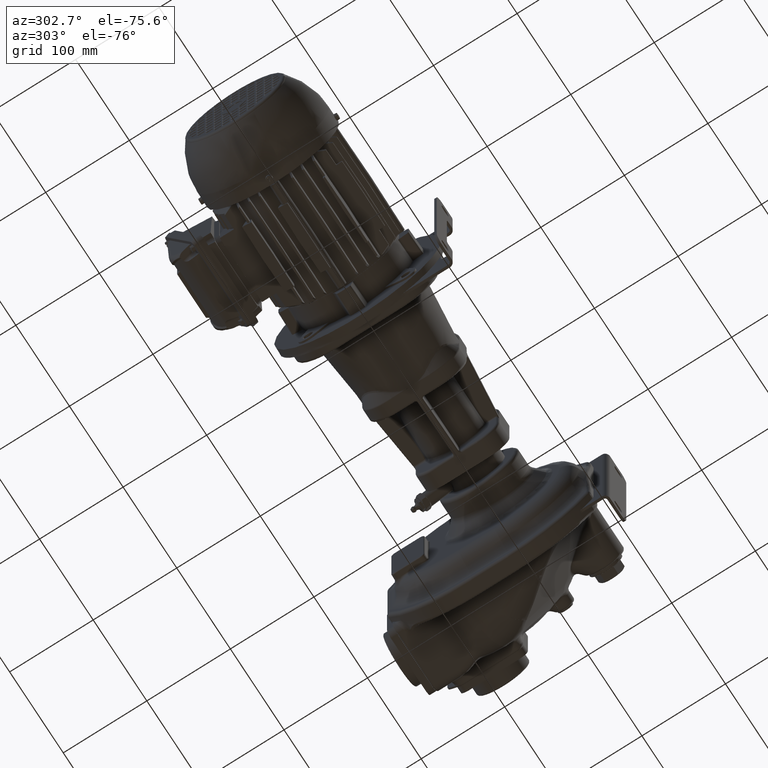
[diagram: clean part render]
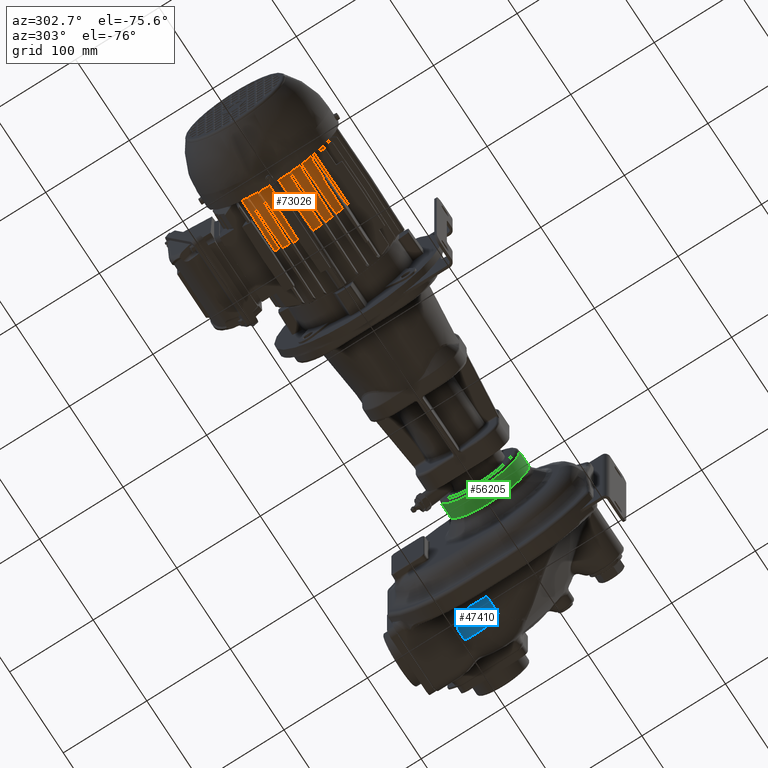
[diagram: same view with three faces highlighted in distinct colors, each labeled with its STEP entity id]
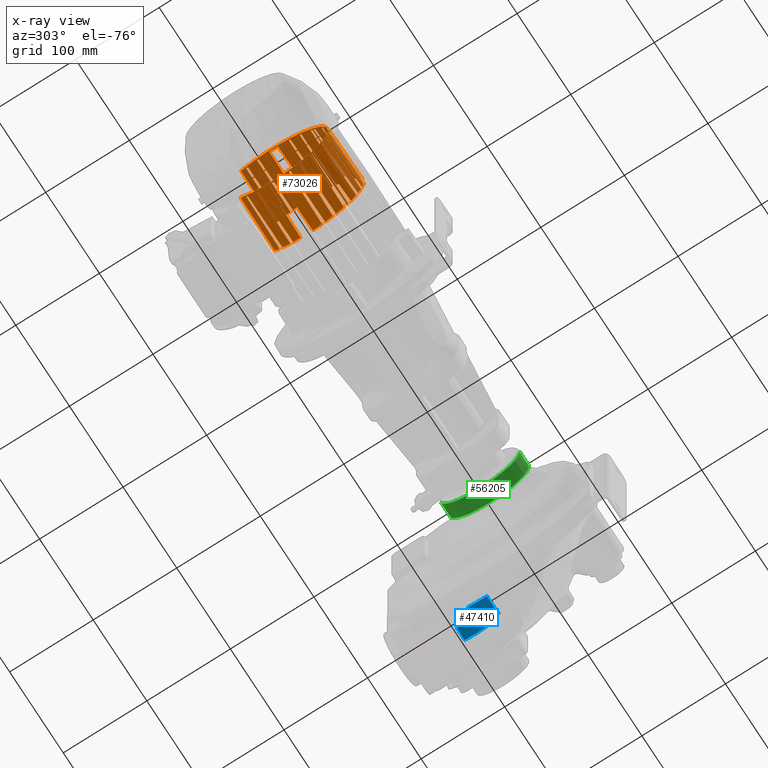
[diagram: x-ray of the same camera — body ghosted, the three highlighted faces saturated]
A machine part, auxiliary view with three faces highlighted in distinct colors.
The next image is the same camera in x-ray (body ghosted, the three faces saturated) — at least one of them is partly hidden behind the body in this view.
Their STEP definitions:

[orange] entity #73026 — the highlighted conical surface has half-angle 1 deg.
#14557=CARTESIAN_POINT('',(-4.073E2,1.1E2,0.E0));
#14558=DIRECTION('',(1.E0,0.E0,0.E0));
#14559=DIRECTION('',(0.E0,4.998790451443E-1,-8.660952258416E-1));
#14560=AXIS2_PLACEMENT_3D('',#14557,#14558,#14559);
#14581=CARTESIAN_POINT('',(-4.073E2,1.1E2,0.E0));
#14582=DIRECTION('',(1.E0,0.E0,0.E0));
#14583=DIRECTION('',(0.E0,3.094633581938E-1,-9.509113680756E-1));
#14584=AXIS2_PLACEMENT_3D('',#14581,#14582,#14583);
#14605=CARTESIAN_POINT('',(-4.073E2,1.1E2,0.E0));
#14606=DIRECTION('',(1.E0,0.E0,0.E0));
#14607=DIRECTION('',(0.E0,1.267527141982E-1,-9.919343473453E-1));
#14608=AXIS2_PLACEMENT_3D('',#14605,#14606,#14607);
#14624=CARTESIAN_POINT('',(-4.073E2,1.04E2,-6.694478652442E1));
#14631=CARTESIAN_POINT('',(-4.073E2,1.1E2,0.E0));
#14632=DIRECTION('',(1.E0,0.E0,0.E0));
#14633=DIRECTION('',(0.E0,-2.559023923526E-1,-9.667026252102E-1));
#14634=AXIS2_PLACEMENT_3D('',#14631,#14632,#14633);
#14643=CARTESIAN_POINT('',(-4.073E2,8.92E1,-6.391372656011E1));
#14650=CARTESIAN_POINT('',(-4.073E2,1.1E2,0.E0));
#14651=DIRECTION('',(1.E0,0.E0,0.E0));
#14652=DIRECTION('',(0.E0,-4.493169912237E-1,-8.933723979381E-1));
#14653=AXIS2_PLACEMENT_3D('',#14650,#14651,#14652);
#14660=CARTESIAN_POINT('',(-4.073E2,7.98E1,-6.004635245208E1));
#14669=CARTESIAN_POINT('',(-4.073E2,1.1E2,0.E0));
#14670=DIRECTION('',(1.E0,0.E0,0.E0));
#14671=DIRECTION('',(0.E0,-6.427315900949E-1,-7.660914456474E-1));
#14672=AXIS2_PLACEMENT_3D('',#14669,#14670,#14671);
#14693=CARTESIAN_POINT('',(-4.073E2,1.1E2,0.E0));
#14694=DIRECTION('',(1.E0,0.E0,0.E0));
#14695=DIRECTION('',(0.E0,-7.177580905486E-1,-6.962925559361E-1));
#14696=AXIS2_PLACEMENT_3D('',#14693,#14694,#14695);
#14703=CARTESIAN_POINT('',(-4.073E2,6.175723429570E1,-4.68E1));
#14717=CARTESIAN_POINT('',(-4.073E2,1.1E2,0.E0));
#14718=DIRECTION('',(1.E0,0.E0,0.E0));
#14719=DIRECTION('',(0.E0,-8.643574262411E-1,-5.028779570650E-1));
#14720=AXIS2_PLACEMENT_3D('',#14717,#14718,#14719);
#14741=CARTESIAN_POINT('',(-4.073E2,1.1E2,0.E0));
#14742=DIRECTION('',(1.E0,0.E0,0.E0));
#14743=DIRECTION('',(0.E0,-9.509113680756E-1,-3.094633581938E-1));
#14744=AXIS2_PLACEMENT_3D('',#14741,#14742,#14743);
#14765=CARTESIAN_POINT('',(-4.073E2,1.1E2,0.E0));
#14766=DIRECTION('',(1.E0,0.E0,0.E0));
#14767=DIRECTION('',(0.E0,-9.960076178565E-1,-8.926827640207E-2));
#14768=AXIS2_PLACEMENT_3D('',#14765,#14766,#14767);
#14784=CARTESIAN_POINT('',(-4.073E2,1.1E2,0.E0));
#14785=DIRECTION('',(1.E0,0.E0,0.E0));
#14786=DIRECTION('',(0.E0,-9.667026252102E-1,2.559023923526E-1));
#14787=AXIS2_PLACEMENT_3D('',#14784,#14785,#14786);
#14796=CARTESIAN_POINT('',(-4.073E2,4.608627343989E1,2.08E1));
#14803=CARTESIAN_POINT('',(-4.073E2,1.1E2,0.E0));
#14804=DIRECTION('',(1.E0,0.E0,0.E0));
#14805=DIRECTION('',(0.E0,-8.933723979381E-1,4.493169912237E-1));
#14806=AXIS2_PLACEMENT_3D('',#14803,#14804,#14805);
#14813=CARTESIAN_POINT('',(-4.073E2,4.995364754791E1,3.02E1));
#14822=CARTESIAN_POINT('',(-4.073E2,1.1E2,0.E0));
#14823=DIRECTION('',(1.E0,0.E0,0.E0));
#14824=DIRECTION('',(0.E0,-7.660914456474E-1,6.427315900949E-1));
#14825=AXIS2_PLACEMENT_3D('',#14822,#14823,#14824);
#14832=CARTESIAN_POINT('',(-4.073E2,5.850859836050E1,4.32E1));
#14870=CARTESIAN_POINT('',(-4.073E2,1.1E2,0.E0));
#14871=DIRECTION('',(1.E0,0.E0,0.E0));
#14872=DIRECTION('',(0.E0,-5.028779570650E-1,8.643574262411E-1));
#14873=AXIS2_PLACEMENT_3D('',#14870,#14871,#14872);
#14894=CARTESIAN_POINT('',(-4.073E2,1.1E2,0.E0));
#14895=DIRECTION('',(1.E0,0.E0,0.E0));
#14896=DIRECTION('',(0.E0,-3.094633581938E-1,9.509113680756E-1));
#14897=AXIS2_PLACEMENT_3D('',#14894,#14895,#14896);
#14918=CARTESIAN_POINT('',(-4.073E2,1.1E2,0.E0));
#14919=DIRECTION('',(1.E0,0.E0,0.E0));
#14920=DIRECTION('',(0.E0,-8.926827640207E-2,9.960076178565E-1));
#14921=AXIS2_PLACEMENT_3D('',#14918,#14919,#14920);
#14937=CARTESIAN_POINT('',(-4.073E2,1.1E2,0.E0));
#14938=DIRECTION('',(1.E0,0.E0,0.E0));
#14939=DIRECTION('',(0.E0,2.559023923526E-1,9.667026252102E-1));
#14940=AXIS2_PLACEMENT_3D('',#14937,#14938,#14939);
#14956=CARTESIAN_POINT('',(-4.073E2,1.1E2,0.E0));
#14957=DIRECTION('',(1.E0,0.E0,0.E0));
#14958=DIRECTION('',(0.E0,4.493169912237E-1,8.933723979381E-1));
#14959=AXIS2_PLACEMENT_3D('',#14956,#14957,#14958);
#14966=CARTESIAN_POINT('',(-4.073E2,1.402E2,6.004635245208E1));
#14968=CARTESIAN_POINT('',(-4.073E2,1.438E2,5.809616547415E1));
#14975=CARTESIAN_POINT('',(-4.073E2,1.1E2,0.E0));
#14976=DIRECTION('',(1.E0,0.E0,0.E0));
#14977=DIRECTION('',(0.E0,5.807390255128E-1,8.140897888110E-1));
#14978=AXIS2_PLACEMENT_3D('',#14975,#14976,#14977);
#15111=CARTESIAN_POINT('',(-4.723E2,1.483924452664E2,5.378098757730E1));
#15112=CARTESIAN_POINT('',(-4.651322760711E2,1.484631119919E2,
5.388426241346E1));
#15113=CARTESIAN_POINT('',(-4.507604984923E2,1.486048039442E2,
5.409133495767E1));
#15114=CARTESIAN_POINT('',(-4.290940433963E2,1.488184153985E2,
5.440350950627E1));
#15115=CARTESIAN_POINT('',(-4.145768133097E2,1.489615426689E2,
5.461267547237E1));
#15116=CARTESIAN_POINT('',(-4.073E2,1.490332858829E2,5.471752037494E1));
#21732=CARTESIAN_POINT('',(-4.708E2,1.1E2,0.E0));
#21733=DIRECTION('',(1.E0,0.E0,0.E0));
#21734=DIRECTION('',(0.E0,-9.969384629122E-1,7.819016029039E-2));
#21735=AXIS2_PLACEMENT_3D('',#21732,#21733,#21734);
#21737=CARTESIAN_POINT('',(-4.073E2,4.608627343989E1,-2.08E1));
#21738=CARTESIAN_POINT('',(-4.144606366068E2,4.618720917871E1,
-2.070626213203E1));
#21739=CARTESIAN_POINT('',(-4.287083608381E2,4.638820289074E1,
-2.051974920502E1));
#21740=CARTESIAN_POINT('',(-4.495762144459E2,4.668304117208E1,
-2.024657403727E1));
#21741=CARTESIAN_POINT('',(-4.637184671426E2,4.688316537706E1,
-2.006144180828E1));
#21742=CARTESIAN_POINT('',(-4.708E2,4.698345594963E1,-1.996873946511E1));
#21744=CARTESIAN_POINT('',(-4.073E2,5.190383452585E1,-3.38E1));
#21745=CARTESIAN_POINT('',(-4.144384329408E2,5.199362292592E1,
-3.370655279394E1));
#21746=CARTESIAN_POINT('',(-4.286600353133E2,5.217257013095E1,
-3.352038182079E1));
#21747=CARTESIAN_POINT('',(-4.498256835640E2,5.243908813789E1,
-3.324330830762E1));
#21748=CARTESIAN_POINT('',(-4.638268751494E2,5.261552132238E1,
-3.306002266973E1));
#21749=CARTESIAN_POINT('',(-4.708E2,5.270342420389E1,-3.296873946511E1));
#21751=CARTESIAN_POINT('',(-4.073E2,6.175723429570E1,-4.68E1));
#21752=CARTESIAN_POINT('',(-4.144407915777E2,6.184020777738E1,
-4.670652191769E1));
#21753=CARTESIAN_POINT('',(-4.286655374568E2,6.200549971447E1,
-4.652030979379E1));
#21754=CARTESIAN_POINT('',(-4.498310703029E2,6.225145991945E1,
-4.624323779135E1));
#21755=CARTESIAN_POINT('',(-4.638291831764E2,6.241413979348E1,
-4.605999245600E1));
#21756=CARTESIAN_POINT('',(-4.708E2,6.249515422753E1,-4.596873946511E1));
#21758=CARTESIAN_POINT('',(-4.708E2,6.403126053489E1,-4.750484577247E1));
#21759=CARTESIAN_POINT('',(-4.638291831754E2,6.394000754398E1,
-4.758586020653E1));
#21760=CARTESIAN_POINT('',(-4.498310703004E2,6.375676220862E1,
-4.774854008058E1));
#21761=CARTESIAN_POINT('',(-4.286655374542E2,6.347969020618E1,
-4.799450028556E1));
#21762=CARTESIAN_POINT('',(-4.144407915766E2,6.329347808229E1,
-4.815979222263E1));
#21763=CARTESIAN_POINT('',(-4.073E2,6.32E1,-4.824276570430E1));
#21765=CARTESIAN_POINT('',(-4.708E2,7.703126053489E1,-5.729657579611E1));
#21766=CARTESIAN_POINT('',(-4.638268751344E2,7.693997733007E1,
-5.738447867781E1));
#21767=CARTESIAN_POINT('',(-4.498256835290E2,7.675669169192E1,
-5.756091186255E1));
#21768=CARTESIAN_POINT('',(-4.286600352781E2,7.647961817875E1,
-5.782742986949E1));
#21769=CARTESIAN_POINT('',(-4.144384329257E2,7.629344720586E1,
-5.800637707427E1));
#21770=CARTESIAN_POINT('',(-4.073E2,7.62E1,-5.809616547415E1));
#21772=CARTESIAN_POINT('',(-4.708E2,1.1E2,0.E0));
#21773=DIRECTION('',(-1.E0,0.E0,0.E0));
#21774=DIRECTION('',(0.E0,-4.694257181296E-1,-8.829719673684E-1));
#21775=AXIS2_PLACEMENT_3D('',#21772,#21773,#21774);
#21777=CARTESIAN_POINT('',(-4.708E2,9.003126053489E1,-6.301654405037E1));
#21778=CARTESIAN_POINT('',(-4.637182860021E2,8.993855582046E1,
-6.311683718830E1));
#21779=CARTESIAN_POINT('',(-4.495758012655E2,8.975342055390E1,
-6.331696466692E1));
#21780=CARTESIAN_POINT('',(-4.287087582823E2,8.948025599781E1,
-6.361179149489E1));
#21781=CARTESIAN_POINT('',(-4.144608110033E2,8.929374015094E1,
-6.381278836301E1));
#21782=CARTESIAN_POINT('',(-4.073E2,8.92E1,-6.391372656011E1));
#21784=CARTESIAN_POINT('',(-4.708E2,1.1E2,0.E0));
#21785=DIRECTION('',(-1.E0,0.E0,0.E0));
#21786=DIRECTION('',(0.E0,-2.727680822329E-1,-9.620798164991E-1));
#21787=AXIS2_PLACEMENT_3D('',#21784,#21785,#21786);
#21789=CARTESIAN_POINT('',(-4.473E2,1.154763713166E2,-6.628909810208E1));
#21790=CARTESIAN_POINT('',(-4.499238559003E2,1.154420231613E2,
-6.624598012181E1));
#21791=CARTESIAN_POINT('',(-4.551630704610E2,1.153734380858E2,
-6.615984119432E1));
#21792=CARTESIAN_POINT('',(-4.629963429952E2,1.152708949312E2,
-6.603092534715E1));
#21793=CARTESIAN_POINT('',(-4.682016070095E2,1.152027542926E2,
-6.594517491460E1));
#21794=CARTESIAN_POINT('',(-4.708E2,1.151687394651E2,-6.590234830580E1));
#21796=CARTESIAN_POINT('',(-4.073E2,1.308E2,-6.391372656011E1));
#21797=CARTESIAN_POINT('',(-4.144606366069E2,1.307062621320E2,
-6.381279082128E1));
#21798=CARTESIAN_POINT('',(-4.287083608385E2,1.305197492050E2,
-6.361179710925E1));
#21799=CARTESIAN_POINT('',(-4.495762144462E2,1.302465740373E2,
-6.331695882791E1));
#21800=CARTESIAN_POINT('',(-4.637184671427E2,1.300614418083E2,
-6.311683462293E1));
#21801=CARTESIAN_POINT('',(-4.708E2,1.299687394651E2,-6.301654405037E1));
#21803=CARTESIAN_POINT('',(-4.073E2,1.435984337522E2,-5.821296841942E1));
#21804=CARTESIAN_POINT('',(-4.144383381418E2,1.435085875067E2,
-5.812096017601E1));
#21805=CARTESIAN_POINT('',(-4.286598140621E2,1.433295919250E2,
-5.793760176208E1));
#21806=CARTESIAN_POINT('',(-4.498254575988E2,1.430632014190E2,
-5.766455236860E1));
#21807=CARTESIAN_POINT('',(-4.638267782842E2,1.428869852205E2,
-5.748382092459E1));
#21808=CARTESIAN_POINT('',(-4.708E2,1.427992235123E2,-5.739378291127E1));
#21810=CARTESIAN_POINT('',(-4.723E2,1.1E2,0.E0));
#21811=DIRECTION('',(-1.E0,0.E0,0.E0));
#21812=DIRECTION('',(0.E0,5.893462876390E-1,-8.078805315430E-1));
#21813=AXIS2_PLACEMENT_3D('',#21810,#21811,#21812);
#21815=CARTESIAN_POINT('',(-4.708E2,1.429687394651E2,5.729657579611E1));
#21816=CARTESIAN_POINT('',(-4.638268751344E2,1.430600226699E2,
5.738447867781E1));
#21817=CARTESIAN_POINT('',(-4.498256835290E2,1.432433083081E2,
5.756091186255E1));
#21818=CARTESIAN_POINT('',(-4.286600352781E2,1.435203818213E2,
5.782742986949E1));
#21819=CARTESIAN_POINT('',(-4.144384329257E2,1.437065527941E2,
5.800637707427E1));
#21820=CARTESIAN_POINT('',(-4.073E2,1.438E2,5.809616547415E1));
#21822=CARTESIAN_POINT('',(-4.708E2,1.1E2,0.E0));
#21823=DIRECTION('',(-1.E0,0.E0,0.E0));
#21824=DIRECTION('',(0.E0,4.694257181296E-1,8.829719673684E-1));
#21825=AXIS2_PLACEMENT_3D('',#21822,#21823,#21824);
#21827=CARTESIAN_POINT('',(-4.708E2,1.299687394651E2,6.301654405037E1));
#21828=CARTESIAN_POINT('',(-4.637182860021E2,1.300614441795E2,
6.311683718830E1));
#21829=CARTESIAN_POINT('',(-4.495758012656E2,1.302465794461E2,
6.331696466692E1));
#21830=CARTESIAN_POINT('',(-4.287087582824E2,1.305197440022E2,
6.361179149489E1));
#21831=CARTESIAN_POINT('',(-4.144608110034E2,1.307062598491E2,
6.381278836301E1));
#21832=CARTESIAN_POINT('',(-4.073E2,1.308E2,6.391372656011E1));
#21834=CARTESIAN_POINT('',(-4.708E2,1.1E2,0.E0));
#21835=DIRECTION('',(-1.E0,0.E0,0.E0));
#21836=DIRECTION('',(0.E0,2.727680822329E-1,9.620798164991E-1));
#21837=AXIS2_PLACEMENT_3D('',#21834,#21835,#21836);
#21839=CARTESIAN_POINT('',(-4.073E2,8.92E1,6.391372656011E1));
#21840=CARTESIAN_POINT('',(-4.144606366076E2,8.929373786798E1,
6.381279082128E1));
#21841=CARTESIAN_POINT('',(-4.287083608401E2,8.948025079501E1,
6.361179710923E1));
#21842=CARTESIAN_POINT('',(-4.495762144478E2,8.975342596275E1,
6.331695882789E1));
#21843=CARTESIAN_POINT('',(-4.637184671434E2,8.993855819173E1,
6.311683462292E1));
#21844=CARTESIAN_POINT('',(-4.708E2,9.003126053489E1,6.301654405037E1));
#21846=CARTESIAN_POINT('',(-4.073E2,7.62E1,5.809616547415E1));
#21847=CARTESIAN_POINT('',(-4.144384329408E2,7.629344720606E1,
5.800637707408E1));
#21848=CARTESIAN_POINT('',(-4.286600353133E2,7.647961817921E1,
5.782742986904E1));
#21849=CARTESIAN_POINT('',(-4.498256835640E2,7.675669169237E1,
5.756091186211E1));
#21850=CARTESIAN_POINT('',(-4.638268751494E2,7.693997733027E1,
5.738447867762E1));
#21851=CARTESIAN_POINT('',(-4.708E2,7.703126053489E1,5.729657579611E1));
#21853=CARTESIAN_POINT('',(-4.123E2,6.326545358542E1,4.818466702433E1));
#21854=CARTESIAN_POINT('',(-4.188723708883E2,6.335149063330E1,
4.810829722807E1));
#21855=CARTESIAN_POINT('',(-4.319688550240E2,6.352293300192E1,
4.795611378738E1));
#21856=CARTESIAN_POINT('',(-4.514679673899E2,6.377819036531E1,
4.772951696344E1));
#21857=CARTESIAN_POINT('',(-4.643719815748E2,6.394711316426E1,
4.757955183461E1));
#21858=CARTESIAN_POINT('',(-4.708E2,6.403126053489E1,4.750484577247E1));
#21860=CARTESIAN_POINT('',(-4.708E2,6.249515422753E1,4.596873946511E1));
#21861=CARTESIAN_POINT('',(-4.643719815739E2,6.242044816538E1,
4.605288683574E1));
#21862=CARTESIAN_POINT('',(-4.514679673879E2,6.227048303653E1,
4.622180963471E1));
#21863=CARTESIAN_POINT('',(-4.319688550221E2,6.204388621260E1,
4.647706699810E1));
#21864=CARTESIAN_POINT('',(-4.188723708875E2,6.189170277192E1,
4.664850936671E1));
#21865=CARTESIAN_POINT('',(-4.123E2,6.181533297567E1,4.673454641458E1));
#21867=CARTESIAN_POINT('',(-4.708E2,5.270342420389E1,3.296873946511E1));
#21868=CARTESIAN_POINT('',(-4.638268751344E2,5.261552132219E1,
3.306002266993E1));
#21869=CARTESIAN_POINT('',(-4.498256835290E2,5.243908813745E1,
3.324330830808E1));
#21870=CARTESIAN_POINT('',(-4.286600352781E2,5.217257013051E1,
3.352038182125E1));
#21871=CARTESIAN_POINT('',(-4.144384329257E2,5.199362292573E1,
3.370655279414E1));
#21872=CARTESIAN_POINT('',(-4.073E2,5.190383452585E1,3.38E1));
#21874=CARTESIAN_POINT('',(-4.708E2,1.1E2,0.E0));
#21875=DIRECTION('',(-1.E0,0.E0,0.E0));
#21876=DIRECTION('',(0.E0,-8.829719673685E-1,4.694257181296E-1));
#21877=AXIS2_PLACEMENT_3D('',#21874,#21875,#21876);
#21879=CARTESIAN_POINT('',(-4.708E2,4.698345594963E1,1.996873946511E1));
#21880=CARTESIAN_POINT('',(-4.637182860015E2,4.688316281169E1,
2.006144417954E1));
#21881=CARTESIAN_POINT('',(-4.495758012642E2,4.668303533306E1,
2.024657944612E1));
#21882=CARTESIAN_POINT('',(-4.287087582810E2,4.638820850509E1,
2.051974400221E1));
#21883=CARTESIAN_POINT('',(-4.144608110028E2,4.618721163698E1,
2.070625984906E1));
#21884=CARTESIAN_POINT('',(-4.073E2,4.608627343989E1,2.08E1));
#21886=CARTESIAN_POINT('',(-4.708E2,1.1E2,0.E0));
#21887=DIRECTION('',(-1.E0,0.E0,0.E0));
#21888=DIRECTION('',(0.E0,-9.620798164991E-1,2.727680822329E-1));
#21889=AXIS2_PLACEMENT_3D('',#21886,#21887,#21888);
#21901=CARTESIAN_POINT('',(-4.073E2,4.305521347558E1,6.E0));
#21902=CARTESIAN_POINT('',(-4.144481457030E2,4.317209825042E1,
5.906425646921E0));
#21903=CARTESIAN_POINT('',(-4.286826962889E2,4.340516523107E1,
5.720085172371E0));
#21904=CARTESIAN_POINT('',(-4.498481656369E2,4.375262979389E1,
5.443014001168E0));
#21905=CARTESIAN_POINT('',(-4.638365094078E2,4.398287972224E1,
5.259896550378E0));
#21906=CARTESIAN_POINT('',(-4.708E2,4.409765169420E1,5.168739465113E0));
#21928=CARTESIAN_POINT('',(-4.708E2,4.409765169420E1,-5.168739465113E0));
#21929=CARTESIAN_POINT('',(-4.638365093219E2,4.398287972083E1,
-5.259896551503E0));
#21930=CARTESIAN_POINT('',(-4.498481654365E2,4.375262979059E1,
-5.443014003792E0));
#21931=CARTESIAN_POINT('',(-4.286826960878E2,4.340516522777E1,
-5.720085175004E0));
#21932=CARTESIAN_POINT('',(-4.144481456168E2,4.317209824901E1,
-5.906425648050E0));
#21933=CARTESIAN_POINT('',(-4.073E2,4.305521347558E1,-6.E0));
#21985=CARTESIAN_POINT('',(-4.708E2,4.640197311708E1,-1.803126053489E1));
#21993=CARTESIAN_POINT('',(-4.073E2,4.502489366842E1,-1.72E1));
#21994=CARTESIAN_POINT('',(-4.144723424180E2,4.517925412757E1,
-1.729389110543E1));
#21995=CARTESIAN_POINT('',(-4.287391499307E2,4.548708256034E1,
-1.748065384628E1));
#21996=CARTESIAN_POINT('',(-4.499041729379E2,4.594608699806E1,
-1.775771917456E1));
#21997=CARTESIAN_POINT('',(-4.638605102381E2,4.625031388391E1,
-1.794041763770E1));
#21998=CARTESIAN_POINT('',(-4.708E2,4.640197311708E1,-1.803126053489E1));
#22004=CARTESIAN_POINT('',(-4.708E2,4.698345594963E1,-1.996873946511E1));
#22012=CARTESIAN_POINT('',(-4.708E2,1.1E2,0.E0));
#22013=DIRECTION('',(1.E0,0.E0,0.E0));
#22014=DIRECTION('',(0.E0,-9.620798164991E-1,-2.727680822329E-1));
#22015=AXIS2_PLACEMENT_3D('',#22012,#22013,#22014);
#22071=CARTESIAN_POINT('',(-4.073E2,4.995364754791E1,-3.02E1));
#22072=CARTESIAN_POINT('',(-4.145031550249E2,5.014181056273E1,
-3.029429446455E1));
#22073=CARTESIAN_POINT('',(-4.288110385117E2,5.051698895019E1,
-3.048159491936E1));
#22074=CARTESIAN_POINT('',(-4.499754452458E2,5.107620066093E1,
-3.075865218018E1));
#22075=CARTESIAN_POINT('',(-4.638910522919E2,5.144671294479E1,
-3.094081745509E1));
#22076=CARTESIAN_POINT('',(-4.708E2,5.163137615556E1,-3.103126053489E1));
#22092=CARTESIAN_POINT('',(-4.708E2,1.1E2,0.E0));
#22093=DIRECTION('',(1.E0,0.E0,0.E0));
#22094=DIRECTION('',(0.E0,-8.829719673684E-1,-4.694257181296E-1));
#22095=AXIS2_PLACEMENT_3D('',#22092,#22093,#22094);
#22163=CARTESIAN_POINT('',(-4.073E2,5.850859836050E1,-4.32E1));
#22164=CARTESIAN_POINT('',(-4.145746581375E2,5.875424432935E1,
-4.329523049157E1));
#22165=CARTESIAN_POINT('',(-4.289778567197E2,5.924370756154E1,
-4.348377868932E1));
#22166=CARTESIAN_POINT('',(-4.501404688471E2,5.997211541433E1,
-4.376081245746E1));
#22167=CARTESIAN_POINT('',(-4.639617670507E2,6.045401180990E1,
-4.394174316199E1));
#22168=CARTESIAN_POINT('',(-4.708E2,6.069398134521E1,-4.403126053489E1));
#22261=CARTESIAN_POINT('',(-4.708E2,6.069398134521E1,-4.403126053489E1));
#22263=CARTESIAN_POINT('',(-4.708E2,6.249515422753E1,-4.596873946511E1));
#22275=CARTESIAN_POINT('',(-4.708E2,1.1E2,0.E0));
#22276=DIRECTION('',(1.E0,0.E0,0.E0));
#22277=DIRECTION('',(0.E0,-7.458773126253E-1,-6.660833540263E-1));
#22278=AXIS2_PLACEMENT_3D('',#22275,#22276,#22277);
#22381=CARTESIAN_POINT('',(-4.708E2,6.596873946511E1,-4.930601865479E1));
#22382=CARTESIAN_POINT('',(-4.639617658266E2,6.605825685404E1,
-4.954598823306E1));
#22383=CARTESIAN_POINT('',(-4.501404659905E2,6.623918757994E1,
-5.002788468481E1));
#22384=CARTESIAN_POINT('',(-4.289778538298E2,6.651622134851E1,
-5.075629253710E1));
#22385=CARTESIAN_POINT('',(-4.145746568988E2,6.670476952465E1,
-5.124575571248E1));
#22386=CARTESIAN_POINT('',(-4.073E2,6.68E1,-5.149140163950E1));
#22400=CARTESIAN_POINT('',(-4.708E2,6.596873946511E1,-4.930601865479E1));
#22411=CARTESIAN_POINT('',(-4.708E2,1.1E2,0.E0));
#22412=DIRECTION('',(1.E0,0.E0,0.E0));
#22413=DIRECTION('',(0.E0,-6.953925867969E-1,-7.186300510193E-1));
#22414=AXIS2_PLACEMENT_3D('',#22411,#22412,#22413);
#22426=CARTESIAN_POINT('',(-4.708E2,6.403126053489E1,-4.750484577247E1));
#22463=CARTESIAN_POINT('',(-4.708E2,7.896873946511E1,-5.836862384444E1));
#22480=CARTESIAN_POINT('',(-4.708E2,7.703126053489E1,-5.729657579611E1));
#22490=CARTESIAN_POINT('',(-4.708E2,7.896873946511E1,-5.836862384444E1));
#22491=CARTESIAN_POINT('',(-4.638910517976E2,7.905918255138E1,
-5.855328706842E1));
#22492=CARTESIAN_POINT('',(-4.499754440922E2,7.924134783492E1,
-5.892379936970E1));
#22493=CARTESIAN_POINT('',(-4.288110373501E2,7.951840509585E1,
-5.948301108035E1));
#22494=CARTESIAN_POINT('',(-4.145031545270E2,7.970570554197E1,
-5.985818945028E1));
#22495=CARTESIAN_POINT('',(-4.073E2,7.98E1,-6.004635245208E1));
#22561=CARTESIAN_POINT('',(-4.708E2,9.003126053489E1,-6.301654405037E1));
#22579=CARTESIAN_POINT('',(-4.708E2,9.196873946511E1,-6.359802688292E1));
#22580=CARTESIAN_POINT('',(-4.638605099881E2,9.205958236557E1,
-6.374968612155E1));
#22581=CARTESIAN_POINT('',(-4.499041723547E2,9.224228083307E1,
-6.405391301463E1));
#22582=CARTESIAN_POINT('',(-4.287391493446E2,9.251934616139E1,
-6.451291745233E1));
#22583=CARTESIAN_POINT('',(-4.144723421667E2,9.270610889786E1,
-6.482074587783E1));
#22584=CARTESIAN_POINT('',(-4.073E2,9.28E1,-6.497510633158E1));
#22637=CARTESIAN_POINT('',(-4.073E2,1.04E2,-6.694478652442E1));
#22638=CARTESIAN_POINT('',(-4.144481457030E2,1.040935743531E2,
-6.682790174958E1));
#22639=CARTESIAN_POINT('',(-4.286826962889E2,1.042799148276E2,
-6.659483476893E1));
#22640=CARTESIAN_POINT('',(-4.498481656369E2,1.045569859988E2,
-6.624737020611E1));
#22641=CARTESIAN_POINT('',(-4.638365094078E2,1.047401034496E2,
-6.601712027776E1));
#22642=CARTESIAN_POINT('',(-4.708E2,1.048312605349E2,-6.590234830580E1));
#22697=CARTESIAN_POINT('',(-4.473E2,1.177701837013E2,-6.605951419161E1));
#22698=CARTESIAN_POINT('',(-4.428986692144E2,1.178527442372E2,
-6.612715823688E1));
#22699=CARTESIAN_POINT('',(-4.340672696192E2,1.180183263527E2,
-6.626264786073E1));
#22700=CARTESIAN_POINT('',(-4.207343107245E2,1.182680743571E2,
-6.646647637290E1));
#22701=CARTESIAN_POINT('',(-4.117877223613E2,1.184355017685E2,
-6.660276555534E1));
#22702=CARTESIAN_POINT('',(-4.073E2,1.185194462786E2,-6.667100927619E1));
#22733=CARTESIAN_POINT('',(-4.473E2,1.1E2,0.E0));
#22734=DIRECTION('',(1.E0,0.E0,0.E0));
#22735=DIRECTION('',(0.E0,8.233297060381E-2,-9.966048775475E-1));
#22736=AXIS2_PLACEMENT_3D('',#22733,#22734,#22735);
#22742=CARTESIAN_POINT('',(-4.708E2,1.1E2,0.E0));
#22743=DIRECTION('',(1.E0,0.E0,0.E0));
#22744=DIRECTION('',(0.E0,-7.819016029038E-2,-9.969384629122E-1));
#22745=AXIS2_PLACEMENT_3D('',#22742,#22743,#22744);
#22810=CARTESIAN_POINT('',(-4.708E2,1.282224332314E2,-6.354351506649E1));
#22817=CARTESIAN_POINT('',(-4.073E2,1.274770185818E2,-6.490114224180E1));
#22818=CARTESIAN_POINT('',(-4.144663793613E2,1.275612078831E2,
-6.474892547088E1));
#22819=CARTESIAN_POINT('',(-4.287252374844E2,1.277286754920E2,
-6.444539773457E1));
#22820=CARTESIAN_POINT('',(-4.498903726462E2,1.279771283397E2,
-6.399287686087E1));
#22821=CARTESIAN_POINT('',(-4.638545964076E2,1.281409662220E2,
-6.369299636158E1));
#22822=CARTESIAN_POINT('',(-4.708E2,1.282224332314E2,-6.354351506649E1));
#22848=CARTESIAN_POINT('',(-4.708E2,1.299687394651E2,-6.301654405037E1));
#22883=CARTESIAN_POINT('',(-4.708E2,1.1E2,0.E0));
#22884=DIRECTION('',(1.E0,0.E0,0.E0));
#22885=DIRECTION('',(0.E0,2.756600491978E-1,-9.612551884262E-1));
#22886=AXIS2_PLACEMENT_3D('',#22883,#22884,#22885);
#22892=CARTESIAN_POINT('',(-4.073E2,1.402E2,-6.004635245208E1));
#22893=CARTESIAN_POINT('',(-4.145031550249E2,1.402942944645E2,
-5.985818943727E1));
#22894=CARTESIAN_POINT('',(-4.288110385117E2,1.404815949194E2,
-5.948301104981E1));
#22895=CARTESIAN_POINT('',(-4.499754452458E2,1.407586521802E2,
-5.892379933907E1));
#22896=CARTESIAN_POINT('',(-4.638910522919E2,1.409408174551E2,
-5.855328705521E1));
#22897=CARTESIAN_POINT('',(-4.708E2,1.410312605349E2,-5.836862384444E1));
#22955=CARTESIAN_POINT('',(-4.708E2,1.427992235123E2,-5.739378291127E1));
#22964=CARTESIAN_POINT('',(-4.708E2,1.1E2,0.E0));
#22965=DIRECTION('',(1.E0,0.E0,0.E0));
#22966=DIRECTION('',(0.E0,4.694257181296E-1,-8.829719673685E-1));
#22967=AXIS2_PLACEMENT_3D('',#22964,#22965,#22966);
#22976=CARTESIAN_POINT('',(-4.708E2,1.410312605349E2,-5.836862384444E1));
#22978=CARTESIAN_POINT('',(-4.073E2,1.495690900466E2,-5.433131284705E1));
#22979=CARTESIAN_POINT('',(-4.146162697606E2,1.494986267993E2,
-5.422464598630E1));
#22980=CARTESIAN_POINT('',(-4.291861008821E2,1.493583097621E2,
-5.401222062099E1));
#22981=CARTESIAN_POINT('',(-4.508519090755E2,1.491496703320E2,
-5.369631958379E1));
#22982=CARTESIAN_POINT('',(-4.651714487926E2,1.490117857446E2,
-5.348751990725E1));
#22983=CARTESIAN_POINT('',(-4.723E2,1.489431468339E2,-5.338357231393E1));
#29439=CARTESIAN_POINT('',(-4.708E2,1.410312605349E2,5.836862384444E1));
#29440=CARTESIAN_POINT('',(-4.638910517976E2,1.409408174486E2,
5.855328706842E1));
#29441=CARTESIAN_POINT('',(-4.499754440922E2,1.407586521651E2,
5.892379936970E1));
#29442=CARTESIAN_POINT('',(-4.288110373501E2,1.404815949042E2,
5.948301108035E1));
#29443=CARTESIAN_POINT('',(-4.145031545270E2,1.402942944580E2,
5.985818945028E1));
#29444=CARTESIAN_POINT('',(-4.073E2,1.402E2,6.004635245208E1));
#29528=CARTESIAN_POINT('',(-4.708E2,1.280312605349E2,6.359802688292E1));
#29529=CARTESIAN_POINT('',(-4.638605099881E2,1.279404176344E2,
6.374968612155E1));
#29530=CARTESIAN_POINT('',(-4.499041723547E2,1.277577191669E2,
6.405391301463E1));
#29531=CARTESIAN_POINT('',(-4.287391493446E2,1.274806538386E2,
6.451291745233E1));
#29532=CARTESIAN_POINT('',(-4.144723421667E2,1.272938911021E2,
6.482074587783E1));
#29533=CARTESIAN_POINT('',(-4.073E2,1.272E2,6.497510633158E1));
#29586=CARTESIAN_POINT('',(-4.073E2,1.16E2,6.694478652442E1));
#29587=CARTESIAN_POINT('',(-4.144481457030E2,1.159064256469E2,
6.682790174958E1));
#29588=CARTESIAN_POINT('',(-4.286826962889E2,1.157200851724E2,
6.659483476893E1));
#29589=CARTESIAN_POINT('',(-4.498481656369E2,1.154430140012E2,
6.624737020611E1));
#29590=CARTESIAN_POINT('',(-4.638365094078E2,1.152598965504E2,
6.601712027776E1));
#29591=CARTESIAN_POINT('',(-4.708E2,1.151687394651E2,6.590234830580E1));
#29613=CARTESIAN_POINT('',(-4.708E2,1.048312605349E2,6.590234830580E1));
#29614=CARTESIAN_POINT('',(-4.638365093219E2,1.047401034485E2,
6.601712027917E1));
#29615=CARTESIAN_POINT('',(-4.498481654365E2,1.045569859962E2,
6.624737020940E1));
#29616=CARTESIAN_POINT('',(-4.286826960878E2,1.042799148250E2,
6.659483477223E1));
#29617=CARTESIAN_POINT('',(-4.144481456168E2,1.040935743519E2,
6.682790175099E1));
#29618=CARTESIAN_POINT('',(-4.073E2,1.04E2,6.694478652442E1));
#29642=CARTESIAN_POINT('',(-4.708E2,1.1E2,0.E0));
#29643=DIRECTION('',(1.E0,0.E0,0.E0));
#29644=DIRECTION('',(0.E0,7.819016029038E-2,9.969384629122E-1));
#29645=AXIS2_PLACEMENT_3D('',#29642,#29643,#29644);
#29673=CARTESIAN_POINT('',(-4.073E2,9.28E1,6.497510633158E1));
#29674=CARTESIAN_POINT('',(-4.144723424180E2,9.270610889457E1,
6.482074587242E1));
#29675=CARTESIAN_POINT('',(-4.287391499307E2,9.251934615372E1,
6.451291743966E1));
#29676=CARTESIAN_POINT('',(-4.499041729379E2,9.224228082544E1,
6.405391300194E1));
#29677=CARTESIAN_POINT('',(-4.638605102381E2,9.205958236230E1,
6.374968611609E1));
#29678=CARTESIAN_POINT('',(-4.708E2,9.196873946511E1,6.359802688292E1));
#29692=CARTESIAN_POINT('',(-4.708E2,1.1E2,0.E0));
#29693=DIRECTION('',(1.E0,0.E0,0.E0));
#29694=DIRECTION('',(0.E0,-2.727680822329E-1,9.620798164991E-1));
#29695=AXIS2_PLACEMENT_3D('',#29692,#29693,#29694);
#29751=CARTESIAN_POINT('',(-4.073E2,7.98E1,6.004635245208E1));
#29752=CARTESIAN_POINT('',(-4.145031550249E2,7.970570553545E1,
5.985818943727E1));
#29753=CARTESIAN_POINT('',(-4.288110385117E2,7.951840508064E1,
5.948301104981E1));
#29754=CARTESIAN_POINT('',(-4.499754452458E2,7.924134781982E1,
5.892379933907E1));
#29755=CARTESIAN_POINT('',(-4.638910522919E2,7.905918254491E1,
5.855328705521E1));
#29756=CARTESIAN_POINT('',(-4.708E2,7.896873946511E1,5.836862384444E1));
#29772=CARTESIAN_POINT('',(-4.708E2,1.1E2,0.E0));
#29773=DIRECTION('',(1.E0,0.E0,0.E0));
#29774=DIRECTION('',(0.E0,-4.694257181296E-1,8.829719673684E-1));
#29775=AXIS2_PLACEMENT_3D('',#29772,#29773,#29774);
#29843=CARTESIAN_POINT('',(-4.072999999999E2,6.9E1,5.325978260188E1));
#29844=CARTESIAN_POINT('',(-4.089667740215E2,6.885417616846E1,
5.311080992840E1));
#29845=CARTESIAN_POINT('',(-4.106334415900E2,6.870836165035E1,
5.296064680516E1));
#29846=CARTESIAN_POINT('',(-4.122999999999E2,6.856255668237E1,
5.280926297649E1));
#29968=CARTESIAN_POINT('',(-4.708E2,6.069398134521E1,4.403126053489E1));
#29969=CARTESIAN_POINT('',(-4.639617658266E2,6.045401176694E1,
4.394174314596E1));
#29970=CARTESIAN_POINT('',(-4.501404659905E2,5.997211531519E1,
4.376081242006E1));
#29971=CARTESIAN_POINT('',(-4.289778538298E2,5.924370746289E1,
4.348377865149E1));
#29972=CARTESIAN_POINT('',(-4.145746568988E2,5.875424428752E1,
4.329523047535E1));
#29973=CARTESIAN_POINT('',(-4.073E2,5.850859836050E1,4.32E1));
#29986=CARTESIAN_POINT('',(-4.708E2,1.1E2,0.E0));
#29987=DIRECTION('',(1.E0,0.E0,0.E0));
#29988=DIRECTION('',(0.E0,-7.186300510193E-1,6.953925867969E-1));
#29989=AXIS2_PLACEMENT_3D('',#29986,#29987,#29988);
#30035=CARTESIAN_POINT('',(-4.123E2,1.1E2,0.E0));
#30036=DIRECTION('',(1.E0,0.E0,0.E0));
#30037=DIRECTION('',(0.E0,-6.962227702062E-1,7.178257826565E-1));
#30038=AXIS2_PLACEMENT_3D('',#30035,#30036,#30037);
#30052=CARTESIAN_POINT('',(-4.123E2,1.1E2,0.E0));
#30053=DIRECTION('',(1.E0,0.E0,0.E0));
#30054=DIRECTION('',(0.E0,-6.173097588439E-1,7.867201927217E-1));
#30055=AXIS2_PLACEMENT_3D('',#30052,#30053,#30054);
#30100=CARTESIAN_POINT('',(-4.708E2,1.1E2,0.E0));
#30101=DIRECTION('',(1.E0,0.E0,0.E0));
#30102=DIRECTION('',(0.E0,-6.660833540263E-1,7.458773126253E-1));
#30103=AXIS2_PLACEMENT_3D('',#30100,#30101,#30102);
#30105=CARTESIAN_POINT('',(-4.123E2,6.673454641457E1,5.132231961700E1));
#30106=CARTESIAN_POINT('',(-4.189864690100E2,6.664701574047E1,
5.109587823245E1));
#30107=CARTESIAN_POINT('',(-4.322350555967E2,6.647358224169E1,
5.064455732444E1));
#30108=CARTESIAN_POINT('',(-4.517318690043E2,6.621835497331E1,
4.997249874883E1));
#30109=CARTESIAN_POINT('',(-4.644850700648E2,6.605140642630E1,
4.952762426743E1));
#30110=CARTESIAN_POINT('',(-4.708E2,6.596873946511E1,4.930601865479E1));
#30331=CARTESIAN_POINT('',(-4.708E2,5.163137615556E1,3.103126053489E1));
#30332=CARTESIAN_POINT('',(-4.638910517976E2,5.144671293158E1,
3.094081744862E1));
#30333=CARTESIAN_POINT('',(-4.499754440922E2,5.107620063030E1,
3.075865216508E1));
#30334=CARTESIAN_POINT('',(-4.288110373501E2,5.051698891965E1,
3.048159490415E1));
#30335=CARTESIAN_POINT('',(-4.145031545270E2,5.014181054972E1,
3.029429445803E1));
#30336=CARTESIAN_POINT('',(-4.073E2,4.995364754791E1,3.02E1));
#30420=CARTESIAN_POINT('',(-4.708E2,4.640197311708E1,1.803126053489E1));
#30421=CARTESIAN_POINT('',(-4.638605099881E2,4.625031387845E1,
1.794041763443E1));
#30422=CARTESIAN_POINT('',(-4.499041723547E2,4.594608698537E1,
1.775771916693E1));
#30423=CARTESIAN_POINT('',(-4.287391493446E2,4.548708254767E1,
1.748065383861E1));
#30424=CARTESIAN_POINT('',(-4.144723421667E2,4.517925412217E1,
1.729389110214E1));
#30425=CARTESIAN_POINT('',(-4.073E2,4.502489366842E1,1.72E1));
#39412=CARTESIAN_POINT('',(-4.073E2,1.402E2,-6.004635245208E1));
#39413=VERTEX_POINT('',#39412);
#39418=CARTESIAN_POINT('',(-4.473E2,1.154763713166E2,-6.628909810208E1));
#39419=VERTEX_POINT('',#39418);
#39428=CARTESIAN_POINT('',(-4.708E2,1.151687394651E2,-6.590234830580E1));
#39429=VERTEX_POINT('',#39428);
#39468=VERTEX_POINT('',#21867);
#39469=VERTEX_POINT('',#21872);
#39470=VERTEX_POINT('',#21901);
#39471=VERTEX_POINT('',#21906);
#39472=CARTESIAN_POINT('',(-4.073E2,4.502489366842E1,1.72E1));
#39473=VERTEX_POINT('',#39472);
#39474=VERTEX_POINT('',#30420);
#39475=CARTESIAN_POINT('',(-4.708E2,4.698345594963E1,1.996873946511E1));
#39476=VERTEX_POINT('',#39475);
#39477=CARTESIAN_POINT('',(-4.123E2,6.326545358542E1,4.818466702433E1));
#39478=CARTESIAN_POINT('',(-4.123E2,6.181533297567E1,4.673454641458E1));
#39479=VERTEX_POINT('',#39477);
#39480=VERTEX_POINT('',#39478);
#39481=VERTEX_POINT('',#21858);
#39482=VERTEX_POINT('',#29843);
#39483=VERTEX_POINT('',#29846);
#39484=VERTEX_POINT('',#30105);
#39485=VERTEX_POINT('',#30110);
#39486=CARTESIAN_POINT('',(-4.708E2,6.249515422753E1,4.596873946511E1));
#39487=CARTESIAN_POINT('',(-4.708E2,6.069398134521E1,4.403126053489E1));
#39488=VERTEX_POINT('',#39486);
#39489=VERTEX_POINT('',#39487);
#39490=VERTEX_POINT('',#21846);
#39491=VERTEX_POINT('',#21851);
#39492=CARTESIAN_POINT('',(-4.708E2,9.196873946511E1,6.359802688292E1));
#39493=CARTESIAN_POINT('',(-4.708E2,9.003126053489E1,6.301654405037E1));
#39494=VERTEX_POINT('',#39492);
#39495=VERTEX_POINT('',#39493);
#39496=VERTEX_POINT('',#29751);
#39497=VERTEX_POINT('',#29756);
#39498=CARTESIAN_POINT('',(-4.073E2,8.92E1,6.391372656011E1));
#39499=VERTEX_POINT('',#39498);
#39500=CARTESIAN_POINT('',(-4.073E2,1.272E2,6.497510633158E1));
#39501=CARTESIAN_POINT('',(-4.073E2,1.16E2,6.694478652442E1));
#39502=VERTEX_POINT('',#39500);
#39503=VERTEX_POINT('',#39501);
#39504=VERTEX_POINT('',#29673);
#39505=VERTEX_POINT('',#29613);
#39506=VERTEX_POINT('',#29618);
#39507=VERTEX_POINT('',#29591);
#39508=VERTEX_POINT('',#14968);
#39512=VERTEX_POINT('',#14966);
#39513=VERTEX_POINT('',#21815);
#39514=VERTEX_POINT('',#21827);
#39515=VERTEX_POINT('',#21832);
#39516=CARTESIAN_POINT('',(-4.708E2,1.410312605349E2,5.836862384444E1));
#39517=VERTEX_POINT('',#39516);
#39518=CARTESIAN_POINT('',(-4.708E2,1.280312605349E2,6.359802688292E1));
#39519=VERTEX_POINT('',#39518);
#39520=CARTESIAN_POINT('',(-4.073E2,1.490332858829E2,5.471752037494E1));
#39521=VERTEX_POINT('',#39520);
#39523=VERTEX_POINT('',#14832);
#39540=VERTEX_POINT('',#14813);
#39553=VERTEX_POINT('',#14796);
#39569=VERTEX_POINT('',#30331);
#39586=CARTESIAN_POINT('',(-4.073E2,1.185194462786E2,-6.667100927619E1));
#39587=VERTEX_POINT('',#39586);
#39592=CARTESIAN_POINT('',(-4.473E2,1.177701837013E2,-6.605951419161E1));
#39593=VERTEX_POINT('',#39592);
#39612=VERTEX_POINT('',#14703);
#39613=VERTEX_POINT('',#14643);
#39618=VERTEX_POINT('',#14660);
#39619=CARTESIAN_POINT('',(-4.073E2,5.190383452585E1,-3.38E1));
#39620=CARTESIAN_POINT('',(-4.073E2,5.850859836050E1,-4.32E1));
#39621=VERTEX_POINT('',#39619);
#39622=VERTEX_POINT('',#39620);
#39629=CARTESIAN_POINT('',(-4.073E2,1.495690900466E2,-5.433131284705E1));
#39631=VERTEX_POINT('',#39629);
#39842=CARTESIAN_POINT('',(-4.073E2,6.68E1,-5.149140163950E1));
#39844=VERTEX_POINT('',#39842);
#39846=VERTEX_POINT('',#22261);
#39859=CARTESIAN_POINT('',(-4.073E2,6.32E1,-4.824276570430E1));
#39861=VERTEX_POINT('',#39859);
#39864=VERTEX_POINT('',#22263);
#39871=VERTEX_POINT('',#22426);
#39872=VERTEX_POINT('',#22400);
#39881=VERTEX_POINT('',#14624);
#39906=CARTESIAN_POINT('',(-4.073E2,9.28E1,-6.497510633158E1));
#39907=VERTEX_POINT('',#39906);
#39921=VERTEX_POINT('',#22561);
#39928=CARTESIAN_POINT('',(-4.708E2,1.048312605349E2,-6.590234830580E1));
#39929=VERTEX_POINT('',#39928);
#39940=VERTEX_POINT('',#22480);
#39944=CARTESIAN_POINT('',(-4.073E2,1.435984337522E2,-5.821296841942E1));
#39945=VERTEX_POINT('',#39944);
#39976=VERTEX_POINT('',#22463);
#39979=CARTESIAN_POINT('',(-4.073E2,7.62E1,-5.809616547415E1));
#39980=VERTEX_POINT('',#39979);
#40024=CARTESIAN_POINT('',(-4.073E2,4.305521347558E1,-6.E0));
#40025=VERTEX_POINT('',#40024);
#40027=CARTESIAN_POINT('',(-4.073E2,4.995364754791E1,-3.02E1));
#40029=VERTEX_POINT('',#40027);
#40032=CARTESIAN_POINT('',(-4.708E2,4.409765169420E1,-5.168739465113E0));
#40034=VERTEX_POINT('',#40032);
#40036=CARTESIAN_POINT('',(-4.073E2,4.502489366842E1,-1.72E1));
#40038=VERTEX_POINT('',#40036);
#40048=VERTEX_POINT('',#21985);
#40049=CARTESIAN_POINT('',(-4.708E2,5.163137615556E1,-3.103126053489E1));
#40050=CARTESIAN_POINT('',(-4.708E2,5.270342420389E1,-3.296873946511E1));
#40051=VERTEX_POINT('',#40049);
#40052=VERTEX_POINT('',#40050);
#40053=VERTEX_POINT('',#22004);
#40054=CARTESIAN_POINT('',(-4.073E2,4.608627343989E1,-2.08E1));
#40055=VERTEX_POINT('',#40054);
#40081=VERTEX_POINT('',#22810);
#40084=VERTEX_POINT('',#22848);
#40086=VERTEX_POINT('',#22976);
#40087=VERTEX_POINT('',#22955);
#40092=CARTESIAN_POINT('',(-4.708E2,9.196873946511E1,-6.359802688292E1));
#40093=VERTEX_POINT('',#40092);
#40140=VERTEX_POINT('',#22817);
#40145=VERTEX_POINT('',#21796);
#41243=CARTESIAN_POINT('',(-4.723E2,1.489431468339E2,-5.338357231393E1));
#41245=VERTEX_POINT('',#41243);
#41248=CARTESIAN_POINT('',(-4.723E2,1.483924452664E2,5.378098757730E1));
#41250=VERTEX_POINT('',#41248);
#72872=CARTESIAN_POINT('',(-4.398E2,1.1E2,0.E0));
#72873=DIRECTION('',(1.E0,0.E0,0.E0));
#72874=DIRECTION('',(0.E0,-1.E0,0.E0));
#72875=AXIS2_PLACEMENT_3D('',#72872,#72873,#72874);
#72876=CONICAL_SURFACE('',#72875,6.664583740234E1,1.E0);
#72878=ORIENTED_EDGE('',*,*,#72877,.T.);
#72880=ORIENTED_EDGE('',*,*,#72879,.T.);
#72881=ORIENTED_EDGE('',*,*,#63731,.T.);
#72883=ORIENTED_EDGE('',*,*,#72882,.T.);
#72885=ORIENTED_EDGE('',*,*,#72884,.T.);
#72887=ORIENTED_EDGE('',*,*,#72886,.F.);
#72888=ORIENTED_EDGE('',*,*,#63723,.T.);
#72890=ORIENTED_EDGE('',*,*,#72889,.T.);
#72892=ORIENTED_EDGE('',*,*,#72891,.T.);
#72894=ORIENTED_EDGE('',*,*,#72893,.F.);
#72895=ORIENTED_EDGE('',*,*,#63715,.T.);
#72897=ORIENTED_EDGE('',*,*,#72896,.T.);
#72899=ORIENTED_EDGE('',*,*,#72898,.T.);
#72901=ORIENTED_EDGE('',*,*,#72900,.F.);
#72902=ORIENTED_EDGE('',*,*,#63707,.T.);
#72904=ORIENTED_EDGE('',*,*,#72903,.F.);
#72906=ORIENTED_EDGE('',*,*,#72905,.T.);
#72908=ORIENTED_EDGE('',*,*,#72907,.T.);
#72909=ORIENTED_EDGE('',*,*,#63699,.T.);
#72911=ORIENTED_EDGE('',*,*,#72910,.F.);
#72913=ORIENTED_EDGE('',*,*,#72912,.F.);
#72915=ORIENTED_EDGE('',*,*,#72914,.T.);
#72916=ORIENTED_EDGE('',*,*,#63691,.T.);
#72918=ORIENTED_EDGE('',*,*,#72917,.F.);
#72920=ORIENTED_EDGE('',*,*,#72919,.F.);
#72922=ORIENTED_EDGE('',*,*,#72921,.T.);
#72923=ORIENTED_EDGE('',*,*,#63683,.T.);
#72925=ORIENTED_EDGE('',*,*,#72924,.T.);
#72927=ORIENTED_EDGE('',*,*,#72926,.T.);
#72929=ORIENTED_EDGE('',*,*,#72928,.F.);
#72931=ORIENTED_EDGE('',*,*,#72930,.T.);
#72933=ORIENTED_EDGE('',*,*,#72932,.T.);
#72934=ORIENTED_EDGE('',*,*,#63671,.T.);
#72936=ORIENTED_EDGE('',*,*,#72935,.T.);
#72938=ORIENTED_EDGE('',*,*,#72937,.T.);
#72940=ORIENTED_EDGE('',*,*,#72939,.F.);
#72941=ORIENTED_EDGE('',*,*,#63663,.T.);
#72943=ORIENTED_EDGE('',*,*,#72942,.T.);
#72945=ORIENTED_EDGE('',*,*,#72944,.T.);
#72947=ORIENTED_EDGE('',*,*,#72946,.F.);
#72948=ORIENTED_EDGE('',*,*,#63655,.T.);
#72950=ORIENTED_EDGE('',*,*,#72949,.T.);
#72951=ORIENTED_EDGE('',*,*,#63967,.T.);
#72952=ORIENTED_EDGE('',*,*,#63951,.T.);
#72953=ORIENTED_EDGE('',*,*,#63817,.T.);
#72955=ORIENTED_EDGE('',*,*,#72954,.F.);
#72957=ORIENTED_EDGE('',*,*,#72956,.F.);
#72959=ORIENTED_EDGE('',*,*,#72958,.T.);
#72960=ORIENTED_EDGE('',*,*,#63809,.T.);
#72962=ORIENTED_EDGE('',*,*,#72961,.F.);
#72964=ORIENTED_EDGE('',*,*,#72963,.F.);
#72966=ORIENTED_EDGE('',*,*,#72965,.T.);
#72967=ORIENTED_EDGE('',*,*,#63801,.T.);
#72969=ORIENTED_EDGE('',*,*,#72968,.T.);
#72971=ORIENTED_EDGE('',*,*,#72970,.T.);
#72973=ORIENTED_EDGE('',*,*,#72972,.T.);
#72974=ORIENTED_EDGE('',*,*,#63793,.T.);
#72976=ORIENTED_EDGE('',*,*,#72975,.T.);
#72978=ORIENTED_EDGE('',*,*,#72977,.T.);
#72980=ORIENTED_EDGE('',*,*,#72979,.F.);
#72981=ORIENTED_EDGE('',*,*,#63785,.T.);
#72983=ORIENTED_EDGE('',*,*,#72982,.T.);
#72985=ORIENTED_EDGE('',*,*,#72984,.T.);
#72987=ORIENTED_EDGE('',*,*,#72986,.F.);
#72988=ORIENTED_EDGE('',*,*,#63777,.T.);
#72990=ORIENTED_EDGE('',*,*,#72989,.T.);
#72992=ORIENTED_EDGE('',*,*,#72991,.T.);
#72994=ORIENTED_EDGE('',*,*,#72993,.T.);
#72996=ORIENTED_EDGE('',*,*,#72995,.T.);
#72998=ORIENTED_EDGE('',*,*,#72997,.F.);
#73000=ORIENTED_EDGE('',*,*,#72999,.T.);
#73002=ORIENTED_EDGE('',*,*,#73001,.F.);
#73004=ORIENTED_EDGE('',*,*,#73003,.T.);
#73006=ORIENTED_EDGE('',*,*,#73005,.T.);
#73007=ORIENTED_EDGE('',*,*,#63757,.T.);
#73009=ORIENTED_EDGE('',*,*,#73008,.F.);
#73011=ORIENTED_EDGE('',*,*,#73010,.F.);
#73013=ORIENTED_EDGE('',*,*,#73012,.T.);
#73014=ORIENTED_EDGE('',*,*,#63749,.T.);
#73016=ORIENTED_EDGE('',*,*,#73015,.F.);
#73018=ORIENTED_EDGE('',*,*,#73017,.F.);
#73020=ORIENTED_EDGE('',*,*,#73019,.T.);
#73021=ORIENTED_EDGE('',*,*,#63741,.T.);
#73023=ORIENTED_EDGE('',*,*,#73022,.T.);
#73024=EDGE_LOOP('',(#72878,#72880,#72881,#72883,#72885,#72887,#72888,#72890,
#72892,#72894,#72895,#72897,#72899,#72901,#72902,#72904,#72906,#72908,#72909,
#72911,#72913,#72915,#72916,#72918,#72920,#72922,#72923,#72925,#72927,#72929,
#72931,#72933,#72934,#72936,#72938,#72940,#72941,#72943,#72945,#72947,#72948,
#72950,#72951,#72952,#72953,#72955,#72957,#72959,#72960,#72962,#72964,#72966,
#72967,#72969,#72971,#72973,#72974,#72976,#72978,#72980,#72981,#72983,#72985,
#72987,#72988,#72990,#72992,#72994,#72996,#72998,#73000,#73002,#73004,#73006,
#73007,#73009,#73011,#73013,#73014,#73016,#73018,#73020,#73021,#73023));
#73025=FACE_OUTER_BOUND('',#73024,.F.);
#73026=ADVANCED_FACE('',(#73025),#72876,.T.);
#14561=CIRCLE('',#14560,6.721312701251E1);
#14585=CIRCLE('',#14584,6.721312701251E1);
#14609=CIRCLE('',#14608,6.721312701251E1);
#14635=CIRCLE('',#14634,6.721312701251E1);
#14654=CIRCLE('',#14653,6.721312701251E1);
#14673=CIRCLE('',#14672,6.721312701251E1);
#14697=CIRCLE('',#14696,6.721312701251E1);
#14721=CIRCLE('',#14720,6.721312701251E1);
#14745=CIRCLE('',#14744,6.721312701251E1);
#14769=CIRCLE('',#14768,6.721312701251E1);
#14788=CIRCLE('',#14787,6.721312701251E1);
#14807=CIRCLE('',#14806,6.721312701251E1);
#14826=CIRCLE('',#14825,6.721312701251E1);
#14874=CIRCLE('',#14873,6.721312701251E1);
#14898=CIRCLE('',#14897,6.721312701251E1);
#14922=CIRCLE('',#14921,6.721312701251E1);
#14941=CIRCLE('',#14940,6.721312701251E1);
#14960=CIRCLE('',#14959,6.721312701251E1);
#14979=CIRCLE('',#14978,6.721312701251E1);
#15117=B_SPLINE_CURVE_WITH_KNOTS('',3,(#15111,#15112,#15113,#15114,#15115,
#15116),.UNSPECIFIED.,.F.,.F.,(4,1,1,4),(0.E0,3.333333333333E-1,
6.666666666667E-1,1.E0),.UNSPECIFIED.);
#21736=CIRCLE('',#21735,6.610473038957E1);
#21743=B_SPLINE_CURVE_WITH_KNOTS('',3,(#21737,#21738,#21739,#21740,#21741,
#21742),.UNSPECIFIED.,.F.,.F.,(4,1,1,4),(0.E0,3.333333333333E-1,
6.666666666667E-1,1.E0),.UNSPECIFIED.);
#21750=B_SPLINE_CURVE_WITH_KNOTS('',3,(#21744,#21745,#21746,#21747,#21748,
#21749),.UNSPECIFIED.,.F.,.F.,(4,1,1,4),(0.E0,3.333333333333E-1,
6.666666666667E-1,1.E0),.UNSPECIFIED.);
#21757=B_SPLINE_CURVE_WITH_KNOTS('',3,(#21751,#21752,#21753,#21754,#21755,
#21756),.UNSPECIFIED.,.F.,.F.,(4,1,1,4),(0.E0,3.333333333333E-1,
6.666666666667E-1,1.E0),.UNSPECIFIED.);
#21764=B_SPLINE_CURVE_WITH_KNOTS('',3,(#21758,#21759,#21760,#21761,#21762,
#21763),.UNSPECIFIED.,.F.,.F.,(4,1,1,4),(0.E0,3.333333333333E-1,
6.666666666667E-1,1.E0),.UNSPECIFIED.);
#21771=B_SPLINE_CURVE_WITH_KNOTS('',3,(#21765,#21766,#21767,#21768,#21769,
#21770),.UNSPECIFIED.,.F.,.F.,(4,1,1,4),(0.E0,3.333333333333E-1,
6.666666666667E-1,1.E0),.UNSPECIFIED.);
#21776=CIRCLE('',#21775,6.610473038957E1);
#21783=B_SPLINE_CURVE_WITH_KNOTS('',3,(#21777,#21778,#21779,#21780,#21781,
#21782),.UNSPECIFIED.,.F.,.F.,(4,1,1,4),(0.E0,3.333333333333E-1,
6.666666666667E-1,1.E0),.UNSPECIFIED.);
#21788=CIRCLE('',#21787,6.610473038957E1);
#21795=B_SPLINE_CURVE_WITH_KNOTS('',3,(#21789,#21790,#21791,#21792,#21793,
#21794),.UNSPECIFIED.,.F.,.F.,(4,1,1,4),(0.E0,3.333333333333E-1,
6.666666666667E-1,1.E0),.UNSPECIFIED.);
#21802=B_SPLINE_CURVE_WITH_KNOTS('',3,(#21796,#21797,#21798,#21799,#21800,
#21801),.UNSPECIFIED.,.F.,.F.,(4,1,1,4),(0.E0,3.333333333333E-1,
6.666666666667E-1,1.E0),.UNSPECIFIED.);
#21809=B_SPLINE_CURVE_WITH_KNOTS('',3,(#21803,#21804,#21805,#21806,#21807,
#21808),.UNSPECIFIED.,.F.,.F.,(4,1,1,4),(0.E0,3.333333333333E-1,
6.666666666667E-1,1.E0),.UNSPECIFIED.);
#21814=CIRCLE('',#21813,6.607854779218E1);
#21821=B_SPLINE_CURVE_WITH_KNOTS('',3,(#21815,#21816,#21817,#21818,#21819,
#21820),.UNSPECIFIED.,.F.,.F.,(4,1,1,4),(0.E0,3.333333333333E-1,
6.666666666667E-1,1.E0),.UNSPECIFIED.);
#21826=CIRCLE('',#21825,6.610473038957E1);
#21833=B_SPLINE_CURVE_WITH_KNOTS('',3,(#21827,#21828,#21829,#21830,#21831,
#21832),.UNSPECIFIED.,.F.,.F.,(4,1,1,4),(0.E0,3.333333333333E-1,
6.666666666667E-1,1.E0),.UNSPECIFIED.);
#21838=CIRCLE('',#21837,6.610473038957E1);
#21845=B_SPLINE_CURVE_WITH_KNOTS('',3,(#21839,#21840,#21841,#21842,#21843,
#21844),.UNSPECIFIED.,.F.,.F.,(4,1,1,4),(0.E0,3.333333333333E-1,
6.666666666667E-1,1.E0),.UNSPECIFIED.);
#21852=B_SPLINE_CURVE_WITH_KNOTS('',3,(#21846,#21847,#21848,#21849,#21850,
#21851),.UNSPECIFIED.,.F.,.F.,(4,1,1,4),(0.E0,3.333333333333E-1,
6.666666666667E-1,1.E0),.UNSPECIFIED.);
#21859=B_SPLINE_CURVE_WITH_KNOTS('',3,(#21853,#21854,#21855,#21856,#21857,
#21858),.UNSPECIFIED.,.F.,.F.,(4,1,1,4),(0.E0,3.333333333333E-1,
6.666666666667E-1,1.E0),.UNSPECIFIED.);
#21866=B_SPLINE_CURVE_WITH_KNOTS('',3,(#21860,#21861,#21862,#21863,#21864,
#21865),.UNSPECIFIED.,.F.,.F.,(4,1,1,4),(0.E0,3.333333333333E-1,
6.666666666667E-1,1.E0),.UNSPECIFIED.);
#21873=B_SPLINE_CURVE_WITH_KNOTS('',3,(#21867,#21868,#21869,#21870,#21871,
#21872),.UNSPECIFIED.,.F.,.F.,(4,1,1,4),(0.E0,3.333333333333E-1,
6.666666666667E-1,1.E0),.UNSPECIFIED.);
#21878=CIRCLE('',#21877,6.610473038957E1);
#21885=B_SPLINE_CURVE_WITH_KNOTS('',3,(#21879,#21880,#21881,#21882,#21883,
#21884),.UNSPECIFIED.,.F.,.F.,(4,1,1,4),(0.E0,3.333333333333E-1,
6.666666666667E-1,1.E0),.UNSPECIFIED.);
#21890=CIRCLE('',#21889,6.610473038957E1);
#21907=B_SPLINE_CURVE_WITH_KNOTS('',3,(#21901,#21902,#21903,#21904,#21905,
#21906),.UNSPECIFIED.,.F.,.F.,(4,1,1,4),(0.E0,3.333333333333E-1,
6.666666666667E-1,1.E0),.UNSPECIFIED.);
#21934=B_SPLINE_CURVE_WITH_KNOTS('',3,(#21928,#21929,#21930,#21931,#21932,
#21933),.UNSPECIFIED.,.F.,.F.,(4,1,1,4),(0.E0,3.333333333333E-1,
6.666666666667E-1,1.E0),.UNSPECIFIED.);
#21999=B_SPLINE_CURVE_WITH_KNOTS('',3,(#21993,#21994,#21995,#21996,#21997,
#21998),.UNSPECIFIED.,.F.,.F.,(4,1,1,4),(0.E0,3.333333333333E-1,
6.666666666667E-1,1.E0),.UNSPECIFIED.);
#22016=CIRCLE('',#22015,6.610473038957E1);
#22077=B_SPLINE_CURVE_WITH_KNOTS('',3,(#22071,#22072,#22073,#22074,#22075,
#22076),.UNSPECIFIED.,.F.,.F.,(4,1,1,4),(0.E0,3.333333333333E-1,
6.666666666667E-1,1.E0),.UNSPECIFIED.);
#22096=CIRCLE('',#22095,6.610473038957E1);
#22169=B_SPLINE_CURVE_WITH_KNOTS('',3,(#22163,#22164,#22165,#22166,#22167,
#22168),.UNSPECIFIED.,.F.,.F.,(4,1,1,4),(0.E0,3.333333333333E-1,
6.666666666667E-1,1.E0),.UNSPECIFIED.);
#22279=CIRCLE('',#22278,6.610473038957E1);
#22387=B_SPLINE_CURVE_WITH_KNOTS('',3,(#22381,#22382,#22383,#22384,#22385,
#22386),.UNSPECIFIED.,.F.,.F.,(4,1,1,4),(0.E0,3.333333333333E-1,
6.666666666667E-1,1.E0),.UNSPECIFIED.);
#22415=CIRCLE('',#22414,6.610473038957E1);
#22496=B_SPLINE_CURVE_WITH_KNOTS('',3,(#22490,#22491,#22492,#22493,#22494,
#22495),.UNSPECIFIED.,.F.,.F.,(4,1,1,4),(0.E0,3.333333333333E-1,
6.666666666667E-1,1.E0),.UNSPECIFIED.);
#22585=B_SPLINE_CURVE_WITH_KNOTS('',3,(#22579,#22580,#22581,#22582,#22583,
#22584),.UNSPECIFIED.,.F.,.F.,(4,1,1,4),(0.E0,3.333333333333E-1,
6.666666666667E-1,1.E0),.UNSPECIFIED.);
#22643=B_SPLINE_CURVE_WITH_KNOTS('',3,(#22637,#22638,#22639,#22640,#22641,
#22642),.UNSPECIFIED.,.F.,.F.,(4,1,1,4),(0.E0,3.333333333333E-1,
6.666666666667E-1,1.E0),.UNSPECIFIED.);
#22703=B_SPLINE_CURVE_WITH_KNOTS('',3,(#22697,#22698,#22699,#22700,#22701,
#22702),.UNSPECIFIED.,.F.,.F.,(4,1,1,4),(0.E0,3.333333333333E-1,
6.666666666667E-1,1.E0),.UNSPECIFIED.);
#22737=CIRCLE('',#22736,6.651492441538E1);
#22746=CIRCLE('',#22745,6.610473038957E1);
#22823=B_SPLINE_CURVE_WITH_KNOTS('',3,(#22817,#22818,#22819,#22820,#22821,
#22822),.UNSPECIFIED.,.F.,.F.,(4,1,1,4),(0.E0,3.333333333333E-1,
6.666666666667E-1,1.E0),.UNSPECIFIED.);
#22887=CIRCLE('',#22886,6.610473038957E1);
#22898=B_SPLINE_CURVE_WITH_KNOTS('',3,(#22892,#22893,#22894,#22895,#22896,
#22897),.UNSPECIFIED.,.F.,.F.,(4,1,1,4),(0.E0,3.333333333333E-1,
6.666666666667E-1,1.E0),.UNSPECIFIED.);
#22968=CIRCLE('',#22967,6.610473038957E1);
#22984=B_SPLINE_CURVE_WITH_KNOTS('',3,(#22978,#22979,#22980,#22981,#22982,
#22983),.UNSPECIFIED.,.F.,.F.,(4,1,1,4),(0.E0,3.333333333333E-1,
6.666666666667E-1,1.E0),.UNSPECIFIED.);
#29445=B_SPLINE_CURVE_WITH_KNOTS('',3,(#29439,#29440,#29441,#29442,#29443,
#29444),.UNSPECIFIED.,.F.,.F.,(4,1,1,4),(0.E0,3.333333333333E-1,
6.666666666667E-1,1.E0),.UNSPECIFIED.);
#29534=B_SPLINE_CURVE_WITH_KNOTS('',3,(#29528,#29529,#29530,#29531,#29532,
#29533),.UNSPECIFIED.,.F.,.F.,(4,1,1,4),(0.E0,3.333333333333E-1,
6.666666666667E-1,1.E0),.UNSPECIFIED.);
#29592=B_SPLINE_CURVE_WITH_KNOTS('',3,(#29586,#29587,#29588,#29589,#29590,
#29591),.UNSPECIFIED.,.F.,.F.,(4,1,1,4),(0.E0,3.333333333333E-1,
6.666666666667E-1,1.E0),.UNSPECIFIED.);
#29619=B_SPLINE_CURVE_WITH_KNOTS('',3,(#29613,#29614,#29615,#29616,#29617,
#29618),.UNSPECIFIED.,.F.,.F.,(4,1,1,4),(0.E0,3.333333333333E-1,
6.666666666667E-1,1.E0),.UNSPECIFIED.);
#29646=CIRCLE('',#29645,6.610473038957E1);
#29679=B_SPLINE_CURVE_WITH_KNOTS('',3,(#29673,#29674,#29675,#29676,#29677,
#29678),.UNSPECIFIED.,.F.,.F.,(4,1,1,4),(0.E0,3.333333333333E-1,
6.666666666667E-1,1.E0),.UNSPECIFIED.);
#29696=CIRCLE('',#29695,6.610473038957E1);
#29757=B_SPLINE_CURVE_WITH_KNOTS('',3,(#29751,#29752,#29753,#29754,#29755,
#29756),.UNSPECIFIED.,.F.,.F.,(4,1,1,4),(0.E0,3.333333333333E-1,
6.666666666667E-1,1.E0),.UNSPECIFIED.);
#29776=CIRCLE('',#29775,6.610473038957E1);
#29847=B_SPLINE_CURVE_WITH_KNOTS('',3,(#29843,#29844,#29845,#29846),
.UNSPECIFIED.,.F.,.F.,(4,4),(0.E0,1.E0),.UNSPECIFIED.);
#29974=B_SPLINE_CURVE_WITH_KNOTS('',3,(#29968,#29969,#29970,#29971,#29972,
#29973),.UNSPECIFIED.,.F.,.F.,(4,1,1,4),(0.E0,3.333333333333E-1,
6.666666666667E-1,1.E0),.UNSPECIFIED.);
#29990=CIRCLE('',#29989,6.610473038957E1);
#30039=CIRCLE('',#30038,6.712585168787E1);
#30056=CIRCLE('',#30055,6.712585168787E1);
#30104=CIRCLE('',#30103,6.610473038957E1);
#30111=B_SPLINE_CURVE_WITH_KNOTS('',3,(#30105,#30106,#30107,#30108,#30109,
#30110),.UNSPECIFIED.,.F.,.F.,(4,1,1,4),(0.E0,3.333333333333E-1,
6.666666666667E-1,1.E0),.UNSPECIFIED.);
#30337=B_SPLINE_CURVE_WITH_KNOTS('',3,(#30331,#30332,#30333,#30334,#30335,
#30336),.UNSPECIFIED.,.F.,.F.,(4,1,1,4),(0.E0,3.333333333333E-1,
6.666666666667E-1,1.E0),.UNSPECIFIED.);
#30426=B_SPLINE_CURVE_WITH_KNOTS('',3,(#30420,#30421,#30422,#30423,#30424,
#30425),.UNSPECIFIED.,.F.,.F.,(4,1,1,4),(0.E0,3.333333333333E-1,
6.666666666667E-1,1.E0),.UNSPECIFIED.);
#63655=EDGE_CURVE('',#39945,#39631,#14561,.T.);
#63663=EDGE_CURVE('',#40145,#39413,#14585,.T.);
#63671=EDGE_CURVE('',#39587,#40140,#14609,.T.);
#63683=EDGE_CURVE('',#39907,#39881,#14635,.T.);
#63691=EDGE_CURVE('',#39618,#39613,#14654,.T.);
#63699=EDGE_CURVE('',#39844,#39980,#14673,.T.);
#63707=EDGE_CURVE('',#39612,#39861,#14697,.T.);
#63715=EDGE_CURVE('',#39621,#39622,#14721,.T.);
#63723=EDGE_CURVE('',#40055,#40029,#14745,.T.);
#63731=EDGE_CURVE('',#40025,#40038,#14769,.T.);
#63741=EDGE_CURVE('',#39473,#39470,#14788,.T.);
#63749=EDGE_CURVE('',#39540,#39553,#14807,.T.);
#63757=EDGE_CURVE('',#39523,#39469,#14826,.T.);
#63777=EDGE_CURVE('',#39490,#39482,#14874,.T.);
#63785=EDGE_CURVE('',#39499,#39496,#14898,.T.);
#63793=EDGE_CURVE('',#39506,#39504,#14922,.T.);
#63801=EDGE_CURVE('',#39502,#39503,#14941,.T.);
#63809=EDGE_CURVE('',#39512,#39515,#14960,.T.);
#63817=EDGE_CURVE('',#39521,#39508,#14979,.T.);
#63951=EDGE_CURVE('',#41250,#39521,#15117,.T.);
#63967=EDGE_CURVE('',#41245,#41250,#21814,.T.);
#72877=EDGE_CURVE('',#39471,#40034,#21736,.T.);
#72879=EDGE_CURVE('',#40034,#40025,#21934,.T.);
#72882=EDGE_CURVE('',#40038,#40048,#21999,.T.);
#72884=EDGE_CURVE('',#40048,#40053,#22016,.T.);
#72886=EDGE_CURVE('',#40055,#40053,#21743,.T.);
#72889=EDGE_CURVE('',#40029,#40051,#22077,.T.);
#72891=EDGE_CURVE('',#40051,#40052,#22096,.T.);
#72893=EDGE_CURVE('',#39621,#40052,#21750,.T.);
#72896=EDGE_CURVE('',#39622,#39846,#22169,.T.);
#72898=EDGE_CURVE('',#39846,#39864,#22279,.T.);
#72900=EDGE_CURVE('',#39612,#39864,#21757,.T.);
#72903=EDGE_CURVE('',#39871,#39861,#21764,.T.);
#72905=EDGE_CURVE('',#39871,#39872,#22415,.T.);
#72907=EDGE_CURVE('',#39872,#39844,#22387,.T.);
#72910=EDGE_CURVE('',#39940,#39980,#21771,.T.);
#72912=EDGE_CURVE('',#39976,#39940,#21776,.T.);
#72914=EDGE_CURVE('',#39976,#39618,#22496,.T.);
#72917=EDGE_CURVE('',#39921,#39613,#21783,.T.);
#72919=EDGE_CURVE('',#40093,#39921,#21788,.T.);
#72921=EDGE_CURVE('',#40093,#39907,#22585,.T.);
#72924=EDGE_CURVE('',#39881,#39929,#22643,.T.);
#72926=EDGE_CURVE('',#39929,#39429,#22746,.T.);
#72928=EDGE_CURVE('',#39419,#39429,#21795,.T.);
#72930=EDGE_CURVE('',#39419,#39593,#22737,.T.);
#72932=EDGE_CURVE('',#39593,#39587,#22703,.T.);
#72935=EDGE_CURVE('',#40140,#40081,#22823,.T.);
#72937=EDGE_CURVE('',#40081,#40084,#22887,.T.);
#72939=EDGE_CURVE('',#40145,#40084,#21802,.T.);
#72942=EDGE_CURVE('',#39413,#40086,#22898,.T.);
#72944=EDGE_CURVE('',#40086,#40087,#22968,.T.);
#72946=EDGE_CURVE('',#39945,#40087,#21809,.T.);
#72949=EDGE_CURVE('',#39631,#41245,#22984,.T.);
#72954=EDGE_CURVE('',#39513,#39508,#21821,.T.);
#72956=EDGE_CURVE('',#39517,#39513,#21826,.T.);
#72958=EDGE_CURVE('',#39517,#39512,#29445,.T.);
#72961=EDGE_CURVE('',#39514,#39515,#21833,.T.);
#72963=EDGE_CURVE('',#39519,#39514,#21838,.T.);
#72965=EDGE_CURVE('',#39519,#39502,#29534,.T.);
#72968=EDGE_CURVE('',#39503,#39507,#29592,.T.);
#72970=EDGE_CURVE('',#39507,#39505,#29646,.T.);
#72972=EDGE_CURVE('',#39505,#39506,#29619,.T.);
#72975=EDGE_CURVE('',#39504,#39494,#29679,.T.);
#72977=EDGE_CURVE('',#39494,#39495,#29696,.T.);
#72979=EDGE_CURVE('',#39499,#39495,#21845,.T.);
#72982=EDGE_CURVE('',#39496,#39497,#29757,.T.);
#72984=EDGE_CURVE('',#39497,#39491,#29776,.T.);
#72986=EDGE_CURVE('',#39490,#39491,#21852,.T.);
#72989=EDGE_CURVE('',#39482,#39483,#29847,.T.);
#72991=EDGE_CURVE('',#39483,#39484,#30056,.T.);
#72993=EDGE_CURVE('',#39484,#39485,#30111,.T.);
#72995=EDGE_CURVE('',#39485,#39481,#30104,.T.);
#72997=EDGE_CURVE('',#39479,#39481,#21859,.T.);
#72999=EDGE_CURVE('',#39479,#39480,#30039,.T.);
#73001=EDGE_CURVE('',#39488,#39480,#21866,.T.);
#73003=EDGE_CURVE('',#39488,#39489,#29990,.T.);
#73005=EDGE_CURVE('',#39489,#39523,#29974,.T.);
#73008=EDGE_CURVE('',#39468,#39469,#21873,.T.);
#73010=EDGE_CURVE('',#39569,#39468,#21878,.T.);
#73012=EDGE_CURVE('',#39569,#39540,#30337,.T.);
#73015=EDGE_CURVE('',#39476,#39553,#21885,.T.);
#73017=EDGE_CURVE('',#39474,#39476,#21890,.T.);
#73019=EDGE_CURVE('',#39474,#39473,#30426,.T.);
#73022=EDGE_CURVE('',#39470,#39471,#21907,.T.);

[blue] entity #47410 — the highlighted cylindrical surface (partial cylindrical patch) has radius 86 mm, axis along (-1, 0, 0).
#4614=CARTESIAN_POINT('',(1.5E0,1.58E2,-9.E0));
#4615=DIRECTION('',(-1.E0,0.E0,0.E0));
#4616=DIRECTION('',(0.E0,2.588190451025E-1,-9.659258262891E-1));
#4617=AXIS2_PLACEMENT_3D('',#4614,#4615,#4616);
#4619=CARTESIAN_POINT('',(2.307118057801E1,1.58E2,-9.499999999178E1));
#4620=CARTESIAN_POINT('',(2.308190054952E1,1.580245820517E2,-9.499999922855E1));
#4621=CARTESIAN_POINT('',(2.310229572612E1,1.580733778041E2,-9.499997908322E1));
#4622=CARTESIAN_POINT('',(2.313296817228E1,1.581440079155E2,-9.499988872229E1));
#4623=CARTESIAN_POINT('',(2.315261116488E1,1.581899047926E2,-9.499979329697E1));
#4624=CARTESIAN_POINT('',(2.316232062993E1,1.582125048693E2,-9.499973745123E1));
#4626=CARTESIAN_POINT('',(2.316232062993E1,1.582125048693E2,-9.499973745123E1));
#4627=CARTESIAN_POINT('',(2.334135457396E1,1.586233960283E2,-9.499872211117E1));
#4628=CARTESIAN_POINT('',(2.369731772827E1,1.594680427383E2,-9.499076459977E1));
#4629=CARTESIAN_POINT('',(2.422471059240E1,1.608077133719E2,-9.495780930093E1));
#4630=CARTESIAN_POINT('',(2.473996500658E1,1.622091866484E2,-9.490090512766E1));
#4631=CARTESIAN_POINT('',(2.523887090166E1,1.636633914510E2,-9.481756923350E1));
#4632=CARTESIAN_POINT('',(2.571645595639E1,1.651569856394E2,-9.470614062810E1));
#4633=CARTESIAN_POINT('',(2.616948591820E1,1.666798648619E2,-9.456548786668E1));
#4634=CARTESIAN_POINT('',(2.659533284582E1,1.682226295437E2,-9.439502152228E1));
#4635=CARTESIAN_POINT('',(2.699173919488E1,1.697761057291E2,-9.419475074654E1));
#4636=CARTESIAN_POINT('',(2.735698269594E1,1.713319815220E2,-9.396519421450E1));
#4637=CARTESIAN_POINT('',(2.769011187667E1,1.728844346686E2,-9.370701047495E1));
#4638=CARTESIAN_POINT('',(2.799019024883E1,1.744272017995E2,-9.342134427676E1));
#4639=CARTESIAN_POINT('',(2.825669294154E1,1.759553037612E2,-9.310952174769E1));
#4640=CARTESIAN_POINT('',(2.848934027731E1,1.774646642694E2,-9.277300145652E1));
#4641=CARTESIAN_POINT('',(2.868799635838E1,1.789514130469E2,-9.241348161456E1));
#4642=CARTESIAN_POINT('',(2.885274401965E1,1.804128631578E2,-9.203259928196E1));
#4643=CARTESIAN_POINT('',(2.894005267413E1,1.813677883973E2,-9.176586614643E1));
#4644=CARTESIAN_POINT('',(2.897816355958E1,1.818405810906E2,-9.162945415083E1));
#4646=CARTESIAN_POINT('',(2.897816355958E1,1.818405810906E2,-9.162945415083E1));
#4647=CARTESIAN_POINT('',(2.903376743149E1,1.825301929896E2,-9.143048259071E1));
#4648=CARTESIAN_POINT('',(2.914376235045E1,1.839046491291E2,-9.101521731939E1));
#4649=CARTESIAN_POINT('',(2.930561947859E1,1.859506872284E2,-9.034068154439E1));
#4650=CARTESIAN_POINT('',(2.946479508985E1,1.879797260811E2,-8.961491342110E1));
#4651=CARTESIAN_POINT('',(2.962172072999E1,1.899904511250E2,-8.883833676508E1));
#4652=CARTESIAN_POINT('',(2.977683756464E1,1.919815152124E2,-8.801143062593E1));
#4653=CARTESIAN_POINT('',(2.993059108776E1,1.939515028677E2,-8.713475103752E1));
#4654=CARTESIAN_POINT('',(3.008341749376E1,1.958990547307E2,-8.620888363582E1));
#4655=CARTESIAN_POINT('',(3.023577092598E1,1.978228485017E2,-8.523444643831E1));
#4656=CARTESIAN_POINT('',(3.038810481522E1,1.997215796060E2,-8.421209866147E1));
#4657=CARTESIAN_POINT('',(3.054086593640E1,2.015939778710E2,-8.314253021589E1));
#4658=CARTESIAN_POINT('',(3.064330257138E1,2.028238283410E2,-8.239850689499E1));
#4659=CARTESIAN_POINT('',(3.069474577128E1,2.034339596767E2,-8.201886949312E1));
#4661=DIRECTION('',(-1.E0,-2.852081262501E-7,-1.255417295499E-7));
#4662=VECTOR('',#4661,1.399252090729E1);
#4663=CARTESIAN_POINT('',(3.069474577128E1,2.034339596767E2,-8.201886949312E1));
#4664=LINE('',#4663,#4662);
#4665=CARTESIAN_POINT('',(1.670222486399E1,2.034339556860E2,-8.201887124977E1));
#4666=CARTESIAN_POINT('',(1.639513253093E1,2.031361339566E2,-8.220418280017E1));
#4667=CARTESIAN_POINT('',(1.577964214071E1,2.025214939104E2,-8.258155787507E1));
#4668=CARTESIAN_POINT('',(1.485865409145E1,2.015449301141E2,-8.316397690557E1));
#4669=CARTESIAN_POINT('',(1.392812703461E1,2.004974799904E2,-8.376954800472E1));
#4670=CARTESIAN_POINT('',(1.298168750671E1,1.993666731577E2,-8.440158000483E1));
#4671=CARTESIAN_POINT('',(1.201307237650E1,1.981397030460E2,-8.506248896936E1));
#4672=CARTESIAN_POINT('',(1.101105050918E1,1.967969450723E2,-8.575695603661E1));
#4673=CARTESIAN_POINT('',(9.966085432961E0,1.953189932379E2,-8.648716889803E1));
#4674=CARTESIAN_POINT('',(8.915765122131E0,1.937549384957E2,-8.722134182612E1));
#4675=CARTESIAN_POINT('',(7.933335616084E0,1.922154079012E2,-8.790618110723E1));
#4676=CARTESIAN_POINT('',(7.073365651489E0,1.907927585104E2,-8.850687576564E1));
#4677=CARTESIAN_POINT('',(6.347570969545E0,1.895182134500E2,-8.901972727058E1));
#4678=CARTESIAN_POINT('',(5.741353739122E0,1.883809474296E2,-8.945769196078E1));
#4679=CARTESIAN_POINT('',(5.227115677512E0,1.873443301869E2,-8.984115118364E1));
#4680=CARTESIAN_POINT('',(4.771487801116E0,1.863515231564E2,-9.019454981259E1));
#4681=CARTESIAN_POINT('',(4.352899391207E0,1.853595772153E2,-9.053420635342E1));
#4682=CARTESIAN_POINT('',(3.961453704199E0,1.843461559718E2,-9.086733434560E1));
#4683=CARTESIAN_POINT('',(3.606103601658E0,1.833493441017E2,-9.118117809978E1));
#4684=CARTESIAN_POINT('',(3.296494264441E0,1.824410040421E2,-9.145548329112E1));
#4685=CARTESIAN_POINT('',(3.015008050556E0,1.816198463890E2,-9.169413560859E1));
#4686=CARTESIAN_POINT('',(2.750882864519E0,1.808881149746E2,-9.189935609879E1));
#4687=CARTESIAN_POINT('',(2.582231876892E0,1.804584361966E2,-9.201603286939E1));
#4688=CARTESIAN_POINT('',(2.499999999999E0,1.802584378788E2,-9.206962106086E1));
#4690=DIRECTION('',(-1.E0,-1.637943114476E-10,-4.389733021529E-11));
#4691=VECTOR('',#4690,9.999999999992E-1);
#4692=CARTESIAN_POINT('',(2.499999999999E0,1.802584378788E2,-9.206962106086E1));
#4693=LINE('',#4692,#4691);
#4727=CARTESIAN_POINT('',(1.5E0,1.802584378787E2,-9.206962106090E1));
#7826=DIRECTION('',(1.E0,1.359740326965E-12,3.809222930701E-10));
#7827=VECTOR('',#7826,2.157118057801E1);
#7828=CARTESIAN_POINT('',(1.5E0,1.58E2,-9.5E1));
#7829=LINE('',#7828,#7827);
#35515=VERTEX_POINT('',#4619);
#35516=VERTEX_POINT('',#4624);
#35524=VERTEX_POINT('',#4644);
#35672=VERTEX_POINT('',#4665);
#35673=VERTEX_POINT('',#4688);
#35676=VERTEX_POINT('',#4659);
#35684=VERTEX_POINT('',#4727);
#35687=CARTESIAN_POINT('',(1.5E0,1.58E2,-9.5E1));
#35688=VERTEX_POINT('',#35687);
#47391=CARTESIAN_POINT('',(-1.75E1,1.58E2,-9.E0));
#47392=DIRECTION('',(-1.E0,0.E0,0.E0));
#47393=DIRECTION('',(0.E0,0.E0,1.E0));
#47394=AXIS2_PLACEMENT_3D('',#47391,#47392,#47393);
#47395=CYLINDRICAL_SURFACE('',#47394,8.6E1);
#47397=ORIENTED_EDGE('',*,*,#47396,.T.);
#47399=ORIENTED_EDGE('',*,*,#47398,.T.);
#47400=ORIENTED_EDGE('',*,*,#44076,.T.);
#47401=ORIENTED_EDGE('',*,*,#44174,.T.);
#47402=ORIENTED_EDGE('',*,*,#44262,.T.);
#47403=ORIENTED_EDGE('',*,*,#47382,.T.);
#47405=ORIENTED_EDGE('',*,*,#47404,.T.);
#47407=ORIENTED_EDGE('',*,*,#47406,.T.);
#47408=EDGE_LOOP('',(#47397,#47399,#47400,#47401,#47402,#47403,#47405,#47407));
#47409=FACE_OUTER_BOUND('',#47408,.F.);
#47410=ADVANCED_FACE('',(#47409),#47395,.T.);
#4618=CIRCLE('',#4617,8.6E1);
#4625=B_SPLINE_CURVE_WITH_KNOTS('',3,(#4619,#4620,#4621,#4622,#4623,#4624),
.UNSPECIFIED.,.F.,.F.,(4,1,1,4),(0.E0,3.333333333333E-1,6.666666666667E-1,1.E0),
.UNSPECIFIED.);
#4645=B_SPLINE_CURVE_WITH_KNOTS('',3,(#4626,#4627,#4628,#4629,#4630,#4631,#4632,
#4633,#4634,#4635,#4636,#4637,#4638,#4639,#4640,#4641,#4642,#4643,#4644),
.UNSPECIFIED.,.F.,.F.,(4,1,1,1,1,1,1,1,1,1,1,1,1,1,1,1,4),(0.E0,6.25E-2,1.25E-1,
1.875E-1,2.5E-1,3.125E-1,3.75E-1,4.375E-1,5.E-1,5.625E-1,6.25E-1,6.875E-1,
7.5E-1,8.125E-1,8.75E-1,9.375E-1,1.E0),.UNSPECIFIED.);
#4660=B_SPLINE_CURVE_WITH_KNOTS('',3,(#4646,#4647,#4648,#4649,#4650,#4651,#4652,
#4653,#4654,#4655,#4656,#4657,#4658,#4659),.UNSPECIFIED.,.F.,.F.,(4,1,1,1,1,1,1,
1,1,1,1,4),(0.E0,9.090909090909E-2,1.818181818182E-1,2.727272727273E-1,
3.636363636364E-1,4.545454545455E-1,5.454545454545E-1,6.363636363636E-1,
7.272727272727E-1,8.181818181818E-1,9.090909090909E-1,1.E0),.UNSPECIFIED.);
#4689=B_SPLINE_CURVE_WITH_KNOTS('',3,(#4665,#4666,#4667,#4668,#4669,#4670,#4671,
#4672,#4673,#4674,#4675,#4676,#4677,#4678,#4679,#4680,#4681,#4682,#4683,#4684,
#4685,#4686,#4687,#4688),.UNSPECIFIED.,.F.,.F.,(4,1,1,1,1,1,1,1,1,1,1,1,1,1,1,1,
1,1,1,1,1,4),(0.E0,4.761904761905E-2,9.523809523810E-2,1.428571428571E-1,
1.904761904762E-1,2.380952380952E-1,2.857142857143E-1,3.333333333333E-1,
3.809523809524E-1,4.285714285714E-1,4.761904761905E-1,5.238095238095E-1,
5.714285714286E-1,6.190476190476E-1,6.666666666667E-1,7.142857142857E-1,
7.619047619048E-1,8.095238095238E-1,8.571428571429E-1,9.047619047619E-1,
9.523809523810E-1,1.E0),.UNSPECIFIED.);
#44076=EDGE_CURVE('',#35515,#35516,#4625,.T.);
#44174=EDGE_CURVE('',#35516,#35524,#4645,.T.);
#44262=EDGE_CURVE('',#35524,#35676,#4660,.T.);
#47382=EDGE_CURVE('',#35676,#35672,#4664,.T.);
#47396=EDGE_CURVE('',#35684,#35688,#4618,.T.);
#47398=EDGE_CURVE('',#35688,#35515,#7829,.T.);
#47404=EDGE_CURVE('',#35672,#35673,#4689,.T.);
#47406=EDGE_CURVE('',#35673,#35684,#4693,.T.);

[green] entity #56205 — the highlighted cylindrical surface (partial cylindrical patch) has radius 47.5 mm, axis along (1, 0, 0).
#9390=CARTESIAN_POINT('',(-6.862741699797E1,1.1E2,0.E0));
#9391=DIRECTION('',(1.E0,0.E0,0.E0));
#9392=DIRECTION('',(0.E0,-1.E0,0.E0));
#9393=AXIS2_PLACEMENT_3D('',#9390,#9391,#9392);
#9415=DIRECTION('',(1.E0,0.E0,0.E0));
#9416=VECTOR('',#9415,1.787325840224E1);
#9417=CARTESIAN_POINT('',(-8.650067540021E1,1.575E2,-1.270469044459E-14));
#9418=LINE('',#9417,#9416);
#9419=DIRECTION('',(1.E0,0.E0,0.E0));
#9420=VECTOR('',#9419,1.787325840224E1);
#9421=CARTESIAN_POINT('',(-8.650067540021E1,6.25E1,0.E0));
#9422=LINE('',#9421,#9420);
#9433=CARTESIAN_POINT('',(-8.650067540021E1,1.1E2,0.E0));
#9434=DIRECTION('',(1.E0,0.E0,0.E0));
#9435=DIRECTION('',(0.E0,-1.E0,0.E0));
#9436=AXIS2_PLACEMENT_3D('',#9433,#9434,#9435);
#35994=CARTESIAN_POINT('',(-6.862741699797E1,6.25E1,0.E0));
#35996=VERTEX_POINT('',#35994);
#35998=CARTESIAN_POINT('',(-6.862741699797E1,1.575E2,-1.788682622893E-14));
#36000=VERTEX_POINT('',#35998);
#36042=CARTESIAN_POINT('',(-8.650067540021E1,6.25E1,0.E0));
#36043=CARTESIAN_POINT('',(-8.650067540021E1,1.575E2,0.E0));
#36044=VERTEX_POINT('',#36042);
#36045=VERTEX_POINT('',#36043);
#56194=CARTESIAN_POINT('',(-9.290070917022E1,1.1E2,0.E0));
#56195=DIRECTION('',(1.E0,0.E0,0.E0));
#56196=DIRECTION('',(0.E0,-1.E0,0.E0));
#56197=AXIS2_PLACEMENT_3D('',#56194,#56195,#56196);
#56198=CYLINDRICAL_SURFACE('',#56197,4.75E1);
#56199=ORIENTED_EDGE('',*,*,#56185,.F.);
#56200=ORIENTED_EDGE('',*,*,#56160,.T.);
#56201=ORIENTED_EDGE('',*,*,#56132,.T.);
#56202=ORIENTED_EDGE('',*,*,#56157,.F.);
#56203=EDGE_LOOP('',(#56199,#56200,#56201,#56202));
#56204=FACE_OUTER_BOUND('',#56203,.F.);
#56205=ADVANCED_FACE('',(#56204),#56198,.T.);
#9394=CIRCLE('',#9393,4.75E1);
#9437=CIRCLE('',#9436,4.75E1);
#56132=EDGE_CURVE('',#35996,#36000,#9394,.T.);
#56157=EDGE_CURVE('',#36045,#36000,#9418,.T.);
#56160=EDGE_CURVE('',#36044,#35996,#9422,.T.);
#56185=EDGE_CURVE('',#36044,#36045,#9437,.T.);